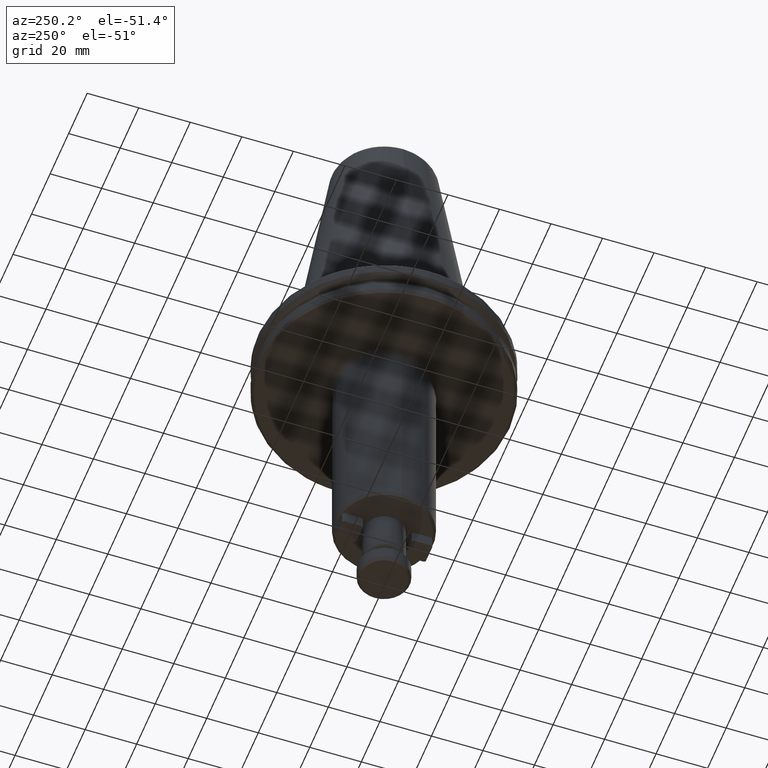
[diagram: clean part render]
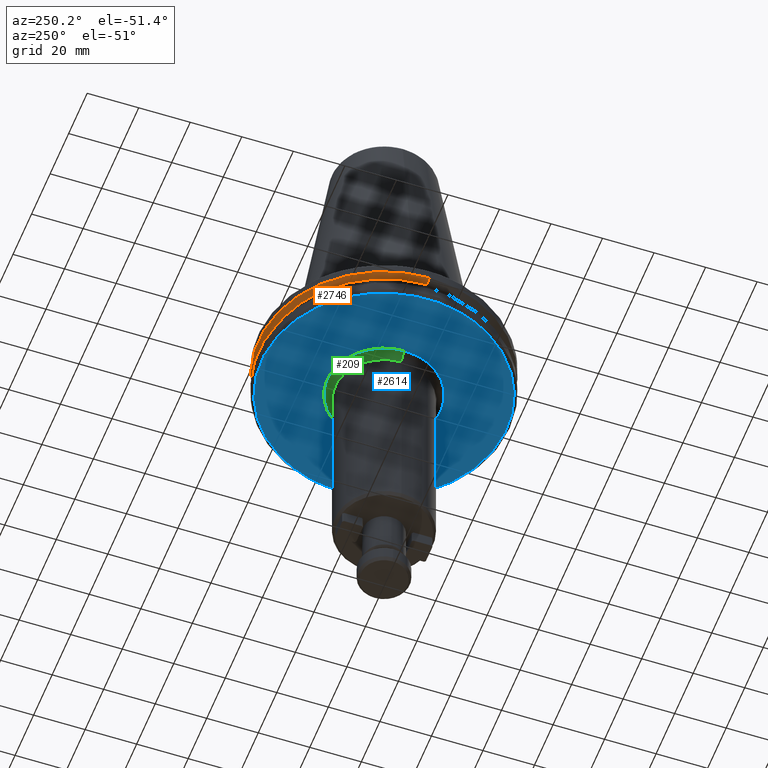
[diagram: same view with three faces highlighted in distinct colors, each labeled with its STEP entity id]
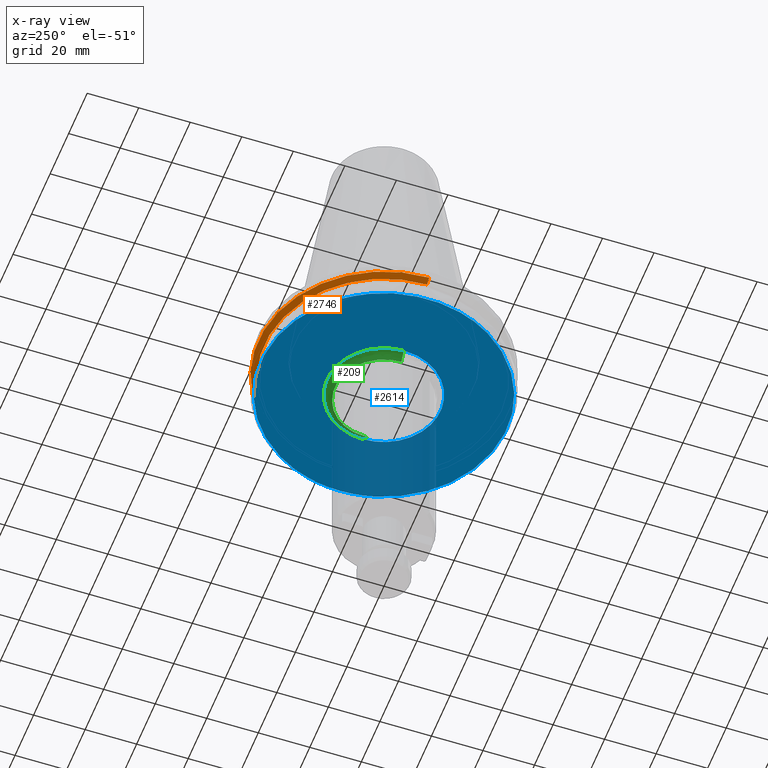
[diagram: x-ray of the same camera — body ghosted, the three highlighted faces saturated]
A machine part, auxiliary view with three faces highlighted in distinct colors.
The next image is the same camera in x-ray (body ghosted, the three faces saturated) — at least one of them is partly hidden behind the body in this view.
Their STEP definitions:

[orange] entity #2746 — the highlighted conical surface has half-angle 60 deg.
#76 = FACE_OUTER_BOUND ( 'NONE', #1607, .T. ) ;
#136 = ORIENTED_EDGE ( 'NONE', *, *, #2966, .F. ) ;
#144 = LINE ( 'NONE', #3633, #1040 ) ;
#149 = AXIS2_PLACEMENT_3D ( 'NONE', #3925, #3938, #1696 ) ;
#197 = CARTESIAN_POINT ( 'NONE',  ( 46.41589653438085600, 0.0000000000000000000, -9.200000000000009900 ) ) ;
#525 = VECTOR ( 'NONE', #2649, 1000.000000000000000 ) ;
#714 = EDGE_CURVE ( 'NONE', #936, #3614, #3057, .T. ) ;
#845 = ORIENTED_EDGE ( 'NONE', *, *, #4125, .F. ) ;
#936 = VERTEX_POINT ( 'NONE', #1743 ) ;
#1040 = VECTOR ( 'NONE', #1351, 1000.000000000000000 ) ;
#1351 = DIRECTION ( 'NONE',  ( 0.8660254037844377100, 0.0000000000000000000, 0.5000000000000016700 ) ) ;
#1419 = AXIS2_PLACEMENT_3D ( 'NONE', #1560, #3816, #1893 ) ;
#1515 = DIRECTION ( 'NONE',  ( 0.0000000000000000000, 0.0000000000000000000, 1.000000000000000000 ) ) ;
#1560 = CARTESIAN_POINT ( 'NONE',  ( 0.0000000000000000000, 0.0000000000000000000, -9.200000000000009900 ) ) ;
#1607 = EDGE_LOOP ( 'NONE', ( #2263, #3952, #136, #845 ) ) ;
#1652 = CONICAL_SURFACE ( 'NONE', #149, 48.75000000000000700, 1.047197551196595900 ) ;
#1696 = DIRECTION ( 'NONE',  ( 1.000000000000000000, 0.0000000000000000000, 0.0000000000000000000 ) ) ;
#1743 = CARTESIAN_POINT ( 'NONE',  ( -46.41589653438085600, 5.827230528940885300E-015, -9.200000000000009900 ) ) ;
#1893 = DIRECTION ( 'NONE',  ( 1.000000000000000000, 0.0000000000000000000, 0.0000000000000000000 ) ) ;
#2206 = CARTESIAN_POINT ( 'NONE',  ( -48.75000000000000700, 5.970153145843347900E-015, -7.852404735808348400 ) ) ;
#2263 = ORIENTED_EDGE ( 'NONE', *, *, #3042, .T. ) ;
#2359 = CARTESIAN_POINT ( 'NONE',  ( -48.75000000000000000, 5.970153145843347100E-015, -7.852404735808352000 ) ) ;
#2528 = CARTESIAN_POINT ( 'NONE',  ( 48.75000000000000000, 0.0000000000000000000, -7.852404735808352000 ) ) ;
#2649 = DIRECTION ( 'NONE',  ( -0.8660254037844377100, 1.060575238724905800E-016, 0.5000000000000016700 ) ) ;
#2746 = ADVANCED_FACE ( 'NONE', ( #76 ), #1652, .T. ) ;
#2966 = EDGE_CURVE ( 'NONE', #3003, #3614, #4142, .T. ) ;
#3003 = VERTEX_POINT ( 'NONE', #2528 ) ;
#3042 = EDGE_CURVE ( 'NONE', #3942, #936, #3259, .T. ) ;
#3057 = LINE ( 'NONE', #2206, #525 ) ;
#3259 = CIRCLE ( 'NONE', #1419, 46.41589653438085600 ) ;
#3464 = CARTESIAN_POINT ( 'NONE',  ( 0.0000000000000000000, 0.0000000000000000000, -7.852404735808352000 ) ) ;
#3614 = VERTEX_POINT ( 'NONE', #2359 ) ;
#3633 = CARTESIAN_POINT ( 'NONE',  ( 48.75000000000000700, 0.0000000000000000000, -7.852404735808348400 ) ) ;
#3686 = AXIS2_PLACEMENT_3D ( 'NONE', #3464, #1515, #3782 ) ;
#3782 = DIRECTION ( 'NONE',  ( 1.000000000000000000, 0.0000000000000000000, 0.0000000000000000000 ) ) ;
#3816 = DIRECTION ( 'NONE',  ( 0.0000000000000000000, 0.0000000000000000000, 1.000000000000000000 ) ) ;
#3925 = CARTESIAN_POINT ( 'NONE',  ( 0.0000000000000000000, 0.0000000000000000000, -7.852404735808348400 ) ) ;
#3938 = DIRECTION ( 'NONE',  ( 0.0000000000000000000, 0.0000000000000000000, 1.000000000000000000 ) ) ;
#3942 = VERTEX_POINT ( 'NONE', #197 ) ;
#3952 = ORIENTED_EDGE ( 'NONE', *, *, #714, .T. ) ;
#4125 = EDGE_CURVE ( 'NONE', #3942, #3003, #144, .T. ) ;
#4142 = CIRCLE ( 'NONE', #3686, 48.75000000000000000 ) ;

[blue] entity #2614 — the highlighted planar face has unit normal (0, 0, -1).
#11 = CARTESIAN_POINT ( 'NONE',  ( 19.06919911911503700, -43.63110076014636000, -19.10000000000000500 ) ) ;
#15 = ORIENTED_EDGE ( 'NONE', *, *, #3251, .T. ) ;
#41 = CARTESIAN_POINT ( 'NONE',  ( 0.0000000000000000000, 0.0000000000000000000, -19.09999999474892700 ) ) ;
#42 = CARTESIAN_POINT ( 'NONE',  ( -45.81650991385436100, -12.85002475276211300, -19.09999999474892700 ) ) ;
#49 = CARTESIAN_POINT ( 'NONE',  ( -43.27416862306105800, -19.78925870223156000, -19.10000000000000900 ) ) ;
#59 = CARTESIAN_POINT ( 'NONE',  ( -25.39850626193174300, 40.23911708929993100, -19.10000000000000100 ) ) ;
#60 = CARTESIAN_POINT ( 'NONE',  ( -40.27606908762341900, -25.37207012674300100, -19.10000000000000900 ) ) ;
#75 = CARTESIAN_POINT ( 'NONE',  ( -39.24372344673313500, -26.91181163147783200, -19.10000000000000100 ) ) ;
#88 = CARTESIAN_POINT ( 'NONE',  ( -41.27447217701355000, -23.73945825336500100, -19.10000000000000500 ) ) ;
#103 = CARTESIAN_POINT ( 'NONE',  ( -29.80952097295647000, -37.11384944854526700, -19.10000000000000500 ) ) ;
#113 = CARTESIAN_POINT ( 'NONE',  ( -39.52121115035011900, -26.50183329894598200, -19.10000000000000900 ) ) ;
#117 = ORIENTED_EDGE ( 'NONE', *, *, #1377, .F. ) ;
#128 = CARTESIAN_POINT ( 'NONE',  ( -14.90863721726842800, 45.18917973414403400, -19.10000000000000500 ) ) ;
#137 = CARTESIAN_POINT ( 'NONE',  ( 2.547980808395235600, 47.51621399213986100, -19.10000000000000100 ) ) ;
#138 = CARTESIAN_POINT ( 'NONE',  ( -39.47414305756478800, -26.57189768201729400, -19.10000000000000900 ) ) ;
#154 = DIRECTION ( 'NONE',  ( 1.000000000000000000, 0.0000000000000000000, 0.0000000000000000000 ) ) ;
#156 = CARTESIAN_POINT ( 'NONE',  ( 15.31832594408059100, 45.06140698263472900, -19.10000000000001200 ) ) ;
#157 = DIRECTION ( 'NONE',  ( -0.0000000000000000000, -0.0000000000000000000, 1.000000000000000000 ) ) ;
#158 = CARTESIAN_POINT ( 'NONE',  ( 0.0000000000000000000, 0.0000000000000000000, -19.09999999474892700 ) ) ;
#170 = CARTESIAN_POINT ( 'NONE',  ( 24.71160396700230100, 40.66470845362184100, -19.10000000000000100 ) ) ;
#171 = CARTESIAN_POINT ( 'NONE',  ( -42.32153804858890600, -21.76885322459245500, -19.10000000000000900 ) ) ;
#175 = CARTESIAN_POINT ( 'NONE',  ( -26.62270247519749200, -39.52978200592753700, -19.09999999999999400 ) ) ;
#181 = AXIS2_PLACEMENT_3D ( 'NONE', #2857, #886, #3181 ) ;
#183 = CARTESIAN_POINT ( 'NONE',  ( -20.67791877936986100, -7.515399659677927800, -19.10000000000000500 ) ) ;
#184 = CARTESIAN_POINT ( 'NONE',  ( 37.49764701077705800, 29.29604387573100900, -19.10000000000000500 ) ) ;
#185 = CARTESIAN_POINT ( 'NONE',  ( -39.38217416850997700, -26.70802196479451900, -19.10000000000000500 ) ) ;
#190 = CARTESIAN_POINT ( 'NONE',  ( -24.37778840664681800, -40.95242410592162200, -19.10000000000000500 ) ) ;
#199 = CARTESIAN_POINT ( 'NONE',  ( -16.63001222808562200, -14.48263358433419300, -19.10000000000000500 ) ) ;
#200 = CARTESIAN_POINT ( 'NONE',  ( 43.60702238820626100, 19.04732045925824500, -19.10000000000000500 ) ) ;
#201 = CARTESIAN_POINT ( 'NONE',  ( 14.17717719788480400, 16.85304434527245800, -19.10000000000000500 ) ) ;
#214 = CARTESIAN_POINT ( 'NONE',  ( -8.270596387122957100, -20.38625831590732000, -19.10000000000000500 ) ) ;
#216 = CARTESIAN_POINT ( 'NONE',  ( -33.04293178105576300, -34.25236535246320100, -19.10000000000000500 ) ) ;
#222 = CARTESIAN_POINT ( 'NONE',  ( -31.34702148197053600, -35.84352815055592600, -19.10000000000000500 ) ) ;
#233 = CARTESIAN_POINT ( 'NONE',  ( -1.345275040422472500, -21.99996757059236800, -19.10000000000000900 ) ) ;
#235 = CARTESIAN_POINT ( 'NONE',  ( 39.87405336317789300, -25.96868526588640000, -19.10000000000000100 ) ) ;
#239 = CARTESIAN_POINT ( 'NONE',  ( 40.76988109013157000, -24.55223597831507500, -19.10000000000000900 ) ) ;
#246 = CARTESIAN_POINT ( 'NONE',  ( 7.515399659682968200, -20.67791877936862100, -19.10000000000000100 ) ) ;
#249 = CARTESIAN_POINT ( 'NONE',  ( 40.17757738671358000, -25.49926469668890400, -19.10000000000000500 ) ) ;
#256 = CARTESIAN_POINT ( 'NONE',  ( -12.63026754929554600, -45.88542074854634500, -19.10000000000000500 ) ) ;
#267 = CARTESIAN_POINT ( 'NONE',  ( 14.48263358431708000, -16.63001222810027400, -19.10000000000000500 ) ) ;
#270 = CARTESIAN_POINT ( 'NONE',  ( -7.064305541282759100, -47.05712494446966300, -19.10000000000000900 ) ) ;
#274 = CARTESIAN_POINT ( 'NONE',  ( -3.066716835733801300, -47.51334310158583900, -19.10000000000000900 ) ) ;
#283 = CARTESIAN_POINT ( 'NONE',  ( 20.38625831590878700, -8.270596387119361700, -19.10000000000000500 ) ) ;
#284 = CARTESIAN_POINT ( 'NONE',  ( 24.05664872149412000, -41.06504018283744300, -19.10000000000000500 ) ) ;
#285 = CARTESIAN_POINT ( 'NONE',  ( 20.88595905968196600, 6.928576152036943500, -19.10000000000000500 ) ) ;
#289 = CARTESIAN_POINT ( 'NONE',  ( 23.04197630937905200, -41.63572875460497600, -19.10000000000000900 ) ) ;
#291 = CARTESIAN_POINT ( 'NONE',  ( 21.68460623744281100, 3.713555144554614900, -19.10000000000000900 ) ) ;
#298 = CARTESIAN_POINT ( 'NONE',  ( 21.99999999999999600, -1.345805848813785000, -19.10000000000000100 ) ) ;
#300 = CARTESIAN_POINT ( 'NONE',  ( -10.47107321257776200, -46.44890181901310200, -19.10000000000000500 ) ) ;
#304 = CARTESIAN_POINT ( 'NONE',  ( -13.70206127222429000, -45.57086505245657500, -19.10000000000000100 ) ) ;
#306 = ORIENTED_EDGE ( 'NONE', *, *, #3627, .F. ) ;
#323 = CARTESIAN_POINT ( 'NONE',  ( 21.64787207006384800, 3.920464838256516600, -19.10000000000000100 ) ) ;
#328 = CARTESIAN_POINT ( 'NONE',  ( 0.0000000000000000000, 1.392610934382537900E-015, -19.10000000000000500 ) ) ;
#331 = CARTESIAN_POINT ( 'NONE',  ( 39.74239188769973900, -26.16898826911619100, -19.10000000000001200 ) ) ;
#336 = CARTESIAN_POINT ( 'NONE',  ( 22.52972475072374100, -41.91334347041178200, -19.10000000000000100 ) ) ;
#350 = CARTESIAN_POINT ( 'NONE',  ( 22.08702858398671200, -42.14779738270512200, -19.10000000000000500 ) ) ;
#364 = CARTESIAN_POINT ( 'NONE',  ( 20.84887959193406800, -42.79392924822951000, -19.10000000000000900 ) ) ;
#370 = VERTEX_POINT ( 'NONE', #3671 ) ;
#376 = CARTESIAN_POINT ( 'NONE',  ( 7.882317655028997700, -46.92741024692442400, -19.10000000000000100 ) ) ;
#382 = CARTESIAN_POINT ( 'NONE',  ( 38.83538641208784300, -27.52832894059743300, -19.10000000000000500 ) ) ;
#386 = CARTESIAN_POINT ( 'NONE',  ( -21.64787207006385500, -3.920464838257106300, -19.10000000000000100 ) ) ;
#390 = DIRECTION ( 'NONE',  ( 1.000000000000000000, 0.0000000000000000000, 0.0000000000000000000 ) ) ;
#395 = CARTESIAN_POINT ( 'NONE',  ( 39.65426651491299700, -26.30232866222224400, -19.09999999999999800 ) ) ;
#407 = CARTESIAN_POINT ( 'NONE',  ( -23.25549417440079800, 41.53467180138673600, -19.10000000000000500 ) ) ;
#409 = CARTESIAN_POINT ( 'NONE',  ( 37.67621538465287800, -29.11717796348957100, -19.10000000000000500 ) ) ;
#421 = CARTESIAN_POINT ( 'NONE',  ( 41.89551112235373200, -22.62542822165210400, -19.10000000000000500 ) ) ;
#425 = EDGE_LOOP ( 'NONE', ( #1737, #2772 ) ) ;
#434 = CARTESIAN_POINT ( 'NONE',  ( -43.25687800644198700, -19.82702823906568700, -19.10000000000000100 ) ) ;
#446 = CARTESIAN_POINT ( 'NONE',  ( -43.17333286363982100, -20.00853958726899200, -19.10000000000000500 ) ) ;
#455 = CARTESIAN_POINT ( 'NONE',  ( 26.04667072494200000, -39.86182647868684400, -19.10000000000000500 ) ) ;
#470 = CARTESIAN_POINT ( 'NONE',  ( -10.82718688243038800, 46.37940535234366000, -19.10000000000000500 ) ) ;
#471 = CARTESIAN_POINT ( 'NONE',  ( -7.254117645265835400, -47.02814260653002500, -19.10000000000000900 ) ) ;
#485 = CARTESIAN_POINT ( 'NONE',  ( 2.921919774953071900, 47.49467552483471900, -19.09999999999999800 ) ) ;
#486 = CARTESIAN_POINT ( 'NONE',  ( 34.73067266395411000, -32.52774543433425700, -19.10000000000000100 ) ) ;
#500 = CARTESIAN_POINT ( 'NONE',  ( 18.21854896511472800, 43.96310894627836800, -19.10000000000000900 ) ) ;
#501 = CARTESIAN_POINT ( 'NONE',  ( -34.27205937641023300, -33.01125269224346700, -19.10000000000000100 ) ) ;
#504 = B_SPLINE_CURVE_WITH_KNOTS ( 'NONE', 3,
 ( #3027, #724, #3350, #1393, #3673, #1728, #3953, #2060, #59, #2389, #407, #2724, #738, #3040, #1070, #3362, #1405, #3689, #1794, #4008, #2128, #128, #2452, #470, #2786, #811, #3105, #1133, #3429, #1475, #3744, #1804, #4023, #2146, #137, #2468, #485, #2799, #821, #3116, #1150, #3442, #1486, #3754, #1816, #4031, #2157, #156, #2481, #500, #2812, #834, #3130, #1162, #3452, #1497, #3768, #1832, #4039, #2169, #170, #2496, #514, #2828, #847, #3141, #1174, #3462, #1512, #3778, #1846, #4049, #2181, #184, #2513, #528, #2836, #865, #3154, #1189, #3476, #1526, #3790, #1862, #4066, #2196, #200, #2526, #541, #2848, #876, #3172, #1201, #3488 ),
 .UNSPECIFIED., .F., .F.,
 ( 4, 1, 1, 1, 1, 2, 2, 1, 1, 1, 2, 2, 1, 1, 2, 2, 2, 1, 1, 2, 2, 1, 1, 1, 2, 2, 1, 1, 1, 1, 2, 2, 2, 1, 1, 1, 1, 2, 2, 1, 1, 1, 2, 2, 1, 1, 2, 2, 2, 1, 1, 2, 2, 1, 1, 1, 2, 2, 1, 1, 1, 1, 2, 2, 4 ),
 ( 0.0000000000000000000, 0.03124999999999664900, 0.04687499999999486500, 0.05468749999999397000, 0.05859374999999363000, 0.06054687499999357500, 0.06249999999999351900, 0.09374999999999429600, 0.1093749999999947100, 0.1171874999999949100, 0.1210937499999949100, 0.1249999999999949200, 0.1562499999999948100, 0.1718749999999947500, 0.1796874999999947300, 0.1874999999999946700, 0.2499999999999945600, 0.2812499999999945000, 0.2968749999999944500, 0.3046874999999944500, 0.3124999999999944500, 0.3437499999999945000, 0.3593749999999945600, 0.3671874999999945600, 0.3710937499999945600, 0.3749999999999945600, 0.4062499999999947300, 0.4218749999999947800, 0.4296874999999947800, 0.4335937499999947300, 0.4355468749999947800, 0.4374999999999947800, 0.4999999999999950000, 0.5312499999999952300, 0.5468749999999952300, 0.5546874999999952300, 0.5585937499999952300, 0.5605468749999953400, 0.5624999999999953400, 0.5937499999999945600, 0.6093749999999941200, 0.6171874999999938900, 0.6210937499999937800, 0.6249999999999936700, 0.6562499999999931200, 0.6718749999999927800, 0.6796874999999926700, 0.6874999999999926700, 0.7499999999999925600, 0.7812499999999927800, 0.7968749999999927800, 0.8046874999999927800, 0.8124999999999926700, 0.8437499999999924500, 0.8593749999999923400, 0.8671874999999922300, 0.8710937499999923400, 0.8749999999999923400, 0.9062499999999934500, 0.9218749999999938900, 0.9296874999999942300, 0.9335937499999944500, 0.9355468749999945600, 0.9374999999999946700, 1.000000000000000000 ),
 .UNSPECIFIED. ) ;
#507 = CARTESIAN_POINT ( 'NONE',  ( -34.55932176383649300, -32.70974151198348100, -19.10000000000000500 ) ) ;
#514 = CARTESIAN_POINT ( 'NONE',  ( 25.76667434766581300, 40.01666842955532400, -19.10000000000000500 ) ) ;
#515 = CARTESIAN_POINT ( 'NONE',  ( -33.86642685690727500, -33.42950363247387500, -19.10000000000000500 ) ) ;
#519 = CARTESIAN_POINT ( 'NONE',  ( -38.91719004522487800, -27.38454355136135400, -19.10000000000000900 ) ) ;
#527 = CARTESIAN_POINT ( 'NONE',  ( -20.52036344144876200, -7.932009045223953300, -19.09999999999999800 ) ) ;
#528 = CARTESIAN_POINT ( 'NONE',  ( 37.95643437415584000, 28.69908590947580500, -19.10000000000000500 ) ) ;
#529 = CARTESIAN_POINT ( 'NONE',  ( -21.94033403670224300, -42.22434829679992400, -19.10000000000000500 ) ) ;
#531 = CARTESIAN_POINT ( 'NONE',  ( -35.57383602575539800, -31.63065524385431400, -19.10000000000000100 ) ) ;
#540 = CARTESIAN_POINT ( 'NONE',  ( -14.17717719791629700, -16.85304434524095600, -19.10000000000000500 ) ) ;
#541 = CARTESIAN_POINT ( 'NONE',  ( 43.84707740126011500, 18.48525077571082100, -19.10000000000000500 ) ) ;
#542 = CARTESIAN_POINT ( 'NONE',  ( -20.98967348492718400, -42.70707776895816500, -19.10000000000000500 ) ) ;
#546 = CARTESIAN_POINT ( 'NONE',  ( -45.81650991385429000, 12.85002475276233900, -19.09999999474892700 ) ) ;
#554 = CARTESIAN_POINT ( 'NONE',  ( -8.139535032519747300, -20.43893125800334300, -19.10000000000000500 ) ) ;
#558 = CARTESIAN_POINT ( 'NONE',  ( 18.61474831812159200, 11.72606424544354000, -19.10000000000000900 ) ) ;
#568 = CARTESIAN_POINT ( 'NONE',  ( 1.677514054503062000, -21.95411813887725900, -19.10000000000000500 ) ) ;
#583 = CARTESIAN_POINT ( 'NONE',  ( 7.932009045225540500, -20.52036344144837400, -19.10000000000000500 ) ) ;
#597 = CARTESIAN_POINT ( 'NONE',  ( 16.85304434525591300, -14.17717719790348600, -19.10000000000000500 ) ) ;
#599 = CARTESIAN_POINT ( 'NONE',  ( 21.82018490565352300, 2.842845475231365400, -19.10000000000000500 ) ) ;
#602 = CARTESIAN_POINT ( 'NONE',  ( 11.71142353891909200, -46.15177667591264300, -19.10000000000000500 ) ) ;
#613 = CARTESIAN_POINT ( 'NONE',  ( 20.43893125800291700, -8.139535032520859300, -19.10000000000000900 ) ) ;
#614 = CARTESIAN_POINT ( 'NONE',  ( 7.487954410176240700, -46.99147931232112500, -19.10000000000000500 ) ) ;
#618 = CARTESIAN_POINT ( 'NONE',  ( 7.606337559600864200, -46.97256599227938500, -19.10000000000000500 ) ) ;
#628 = CARTESIAN_POINT ( 'NONE',  ( -14.69055632917383000, -45.25992943446074400, -19.10000000000000100 ) ) ;
#631 = CARTESIAN_POINT ( 'NONE',  ( 32.84777691328537200, -34.53116215255219100, -19.10000000000000100 ) ) ;
#651 = CARTESIAN_POINT ( 'NONE',  ( 30.87175777942523800, -36.30849107487021900, -19.10000000000000100 ) ) ;
#662 = CARTESIAN_POINT ( 'NONE',  ( 9.531275137177059900, -46.62778514758635100, -19.10000000000000500 ) ) ;
#668 = CARTESIAN_POINT ( 'NONE',  ( -7.178197001860739100, -47.03979101429536800, -19.10000000000000900 ) ) ;
#678 = CARTESIAN_POINT ( 'NONE',  ( 8.433288832968020900, -46.83300009518481500, -19.10000000000000500 ) ) ;
#682 = CARTESIAN_POINT ( 'NONE',  ( 14.92480319435984300, -45.18322660194292000, -19.10000000000000500 ) ) ;
#694 = CARTESIAN_POINT ( 'NONE',  ( -14.61660763804840700, -45.28386166225934100, -19.10000000000000900 ) ) ;
#699 = CARTESIAN_POINT ( 'NONE',  ( 13.55299495753909000, -45.63134899766063100, -19.10000000000000900 ) ) ;
#709 = CARTESIAN_POINT ( 'NONE',  ( 15.08070599188592800, -45.13143456946085100, -19.10000000000000900 ) ) ;
#715 = CARTESIAN_POINT ( 'NONE',  ( 14.84463130699052900, -45.20962530651281200, -19.10000000000000900 ) ) ;
#721 = CARTESIAN_POINT ( 'NONE',  ( 47.58440623598965400, 0.0000000000000000000, -19.09999999474892700 ) ) ;
#724 = CARTESIAN_POINT ( 'NONE',  ( -29.25803840789287200, 37.53861819214704800, -19.09999999999999800 ) ) ;
#727 = CARTESIAN_POINT ( 'NONE',  ( 15.85766042695990500, -44.86641853677324600, -19.10000000000000500 ) ) ;
#738 = CARTESIAN_POINT ( 'NONE',  ( -20.97772230054858200, 42.71191916152597700, -19.10000000000000100 ) ) ;
#741 = CARTESIAN_POINT ( 'NONE',  ( 16.93742074003273900, -44.47652521782405400, -19.10000000000000100 ) ) ;
#756 = CARTESIAN_POINT ( 'NONE',  ( 16.63001222812161800, 14.48263358429818500, -19.10000000000000500 ) ) ;
#761 = CARTESIAN_POINT ( 'NONE',  ( 22.00000000000000000, 2.694222958124176800E-015, -19.10000000000000500 ) ) ;
#770 = CARTESIAN_POINT ( 'NONE',  ( 15.31431248954055300, -45.05316046877541000, -19.10000000000000100 ) ) ;
#773 = CARTESIAN_POINT ( 'NONE',  ( 20.52036344144912400, 7.932009045223265000, -19.10000000000000100 ) ) ;
#785 = CARTESIAN_POINT ( 'NONE',  ( 21.65908062398337800, 3.858408933056433700, -19.10000000000000500 ) ) ;
#811 = CARTESIAN_POINT ( 'NONE',  ( -6.393095184566051100, 47.17156811542699300, -19.10000000000000900 ) ) ;
#821 = CARTESIAN_POINT ( 'NONE',  ( 5.478699833393303500, 47.28562886859818800, -19.10000000000000100 ) ) ;
#822 = CARTESIAN_POINT ( 'NONE',  ( -14.46442323065742200, -45.33270475704076600, -19.10000000000000500 ) ) ;
#827 = CARTESIAN_POINT ( 'NONE',  ( 20.56844768583306400, 7.807259079637626400, -19.10000000000000100 ) ) ;
#834 = CARTESIAN_POINT ( 'NONE',  ( 19.36869561264892800, 43.46430390230612800, -19.10000000000000100 ) ) ;
#835 = CARTESIAN_POINT ( 'NONE',  ( 34.89789368789844600, -32.34827798778996300, -19.10000000000000100 ) ) ;
#847 = CARTESIAN_POINT ( 'NONE',  ( 28.41294149275874800, 38.17601633497948700, -19.09999999999999800 ) ) ;
#848 = CARTESIAN_POINT ( 'NONE',  ( 15.01951766509526300, 16.09320698700697600, -19.10000000000000500 ) ) ;
#854 = CARTESIAN_POINT ( 'NONE',  ( -14.23600727233111000, -45.40538341419763000, -19.10000000000000500 ) ) ;
#864 = CARTESIAN_POINT ( 'NONE',  ( -20.47244127071620300, -8.054890344844070100, -19.10000000000000100 ) ) ;
#865 = CARTESIAN_POINT ( 'NONE',  ( 39.55409234850913700, 26.48536274293576300, -19.10000000000000100 ) ) ;
#867 = CARTESIAN_POINT ( 'NONE',  ( -21.72237678637516800, -42.33689194281741700, -19.10000000000000500 ) ) ;
#875 = CARTESIAN_POINT ( 'NONE',  ( -12.58948349908238900, -18.04357110901347700, -19.10000000000000100 ) ) ;
#876 = CARTESIAN_POINT ( 'NONE',  ( 43.91854959793744200, 18.31478907998181800, -19.10000000000000100 ) ) ;
#877 = CARTESIAN_POINT ( 'NONE',  ( 19.09681535523005600, 10.93436047074153300, -19.10000000000000500 ) ) ;
#880 = CARTESIAN_POINT ( 'NONE',  ( -44.93810529642089300, 15.98161967225063900, -19.10000000000000100 ) ) ;
#881 = CARTESIAN_POINT ( 'NONE',  ( -38.25019637275914900, -28.31889818161814500, -19.10000000000000500 ) ) ;
#886 = DIRECTION ( 'NONE',  ( -0.0000000000000000000, -0.0000000000000000000, 1.000000000000000000 ) ) ;
#889 = CARTESIAN_POINT ( 'NONE',  ( -6.425581732760171900, -21.06203278896098000, -19.10000000000000900 ) ) ;
#891 = CARTESIAN_POINT ( 'NONE',  ( -6.798485331641742800, -47.09660001122696800, -19.10000000000000900 ) ) ;
#902 = CARTESIAN_POINT ( 'NONE',  ( 3.423553767312095300, -21.73315916266629000, -19.10000000000000500 ) ) ;
#918 = CARTESIAN_POINT ( 'NONE',  ( 8.054890344843361300, -20.47244127071656500, -19.10000000000000500 ) ) ;
#920 = CARTESIAN_POINT ( 'NONE',  ( 18.51510597627777000, 11.88274179770358300, -19.10000000000000500 ) ) ;
#929 = CARTESIAN_POINT ( 'NONE',  ( 18.04357110902002500, -12.58948349907677600, -19.10000000000000900 ) ) ;
#944 = CARTESIAN_POINT ( 'NONE',  ( 21.06203278897300600, -6.425581732729024300, -19.10000000000000500 ) ) ;
#1053 = ORIENTED_EDGE ( 'NONE', *, *, #3013, .T. ) ;
#1070 = CARTESIAN_POINT ( 'NONE',  ( -20.42700269620342000, 42.97696412136785700, -19.09999999999999800 ) ) ;
#1077 = CARTESIAN_POINT ( 'NONE',  ( 21.95408976314558900, 1.677667413967471000, -19.10000000000000900 ) ) ;
#1099 = CARTESIAN_POINT ( 'NONE',  ( -7.290541769874658400, -47.02251111249497500, -19.10000000000000500 ) ) ;
#1100 = CARTESIAN_POINT ( 'NONE',  ( 22.00000000000000700, 0.6727251541908998400, -19.10000000000000900 ) ) ;
#1114 = VERTEX_POINT ( 'NONE', #761 ) ;
#1122 = CARTESIAN_POINT ( 'NONE',  ( 17.58303452885754600, 13.30955040853501400, -19.10000000000000100 ) ) ;
#1133 = CARTESIAN_POINT ( 'NONE',  ( -3.905819226031873400, 47.42442718986811200, -19.10000000000000500 ) ) ;
#1144 = CARTESIAN_POINT ( 'NONE',  ( -21.82018490565353000, -2.842845475237781200, -19.10000000000000500 ) ) ;
#1150 = CARTESIAN_POINT ( 'NONE',  ( 8.014402807646559900, 46.90567306712805600, -19.10000000000000500 ) ) ;
#1162 = CARTESIAN_POINT ( 'NONE',  ( 19.64105775858945100, 43.34165811582305100, -19.10000000000000900 ) ) ;
#1165 = CARTESIAN_POINT ( 'NONE',  ( -45.81650991385429000, 12.85002475276233900, -19.09999999474892700 ) ) ;
#1174 = CARTESIAN_POINT ( 'NONE',  ( 29.39637043276513900, 37.41901030422590700, -19.10000000000000900 ) ) ;
#1188 = CARTESIAN_POINT ( 'NONE',  ( -19.72140032570629800, -9.800061415354756300, -19.10000000000000100 ) ) ;
#1189 = CARTESIAN_POINT ( 'NONE',  ( 40.92895922265621100, 24.27337234609990800, -19.10000000000000500 ) ) ;
#1200 = CARTESIAN_POINT ( 'NONE',  ( -12.19716485784353000, -18.30951292798233300, -19.10000000000000500 ) ) ;
#1201 = CARTESIAN_POINT ( 'NONE',  ( 45.30006797984477600, 14.69104886070644700, -19.10000000000000500 ) ) ;
#1203 = CARTESIAN_POINT ( 'NONE',  ( -43.75094089817592600, 18.99202807369529800, -19.10000000000000500 ) ) ;
#1212 = CARTESIAN_POINT ( 'NONE',  ( -4.615105481666332400, -21.51181872264644600, -19.10000000000000500 ) ) ;
#1214 = CARTESIAN_POINT ( 'NONE',  ( 10.45736319288341500, 19.38087801474524600, -19.10000000000000900 ) ) ;
#1217 = CARTESIAN_POINT ( 'NONE',  ( -34.44459152367806400, -32.83054084352279000, -19.10000000000000100 ) ) ;
#1223 = CARTESIAN_POINT ( 'NONE',  ( 3.858390362183781200, -21.65908406010714100, -19.10000000000000100 ) ) ;
#1225 = CARTESIAN_POINT ( 'NONE',  ( 6.425581732685285100, 21.06203278898110300, -19.10000000000000500 ) ) ;
#1230 = CARTESIAN_POINT ( 'NONE',  ( 7.434860855781690400, 20.71792446930702900, -19.10000000000000500 ) ) ;
#1240 = B_SPLINE_CURVE_WITH_KNOTS ( 'NONE', 3,
 ( #3629, #1100, #1077, #599, #1694, #291, #785, #323, #1271, #3821, #1925, #2455, #285, #2899, #827, #773, #1979, #3781, #3435, #1942, #877, #3456, #558, #920, #1487, #1122, #756, #848, #201, #3590, #3566, #3550, #2486, #2469, #2453, #1214, #1274, #2691, #2518, #2514, #2503, #1322, #1230, #1225, #3380, #3364, #3338, #3819, #2017, #1435, #3745, #1592, #3221, #3239, #3230, #3227, #2482, #2361, #3265, #3412, #2645, #1390, #3529, #3518, #3507, #2442, #2431, #2420, #1723, #3674, #2590, #2404, #2379, #2353, #3895, #2581, #2750, #3203, #3197, #3188, #1940, #1923, #1918, #3613, #1503, #3968, #1970, #1964, #1957, #3058, #2101, #1865, #3502, #3495, #3489, #2327, #2319, #2309, #3769, #2910, #3348, #2348, #2339, #2334, #3335, #4055 ),
 .UNSPECIFIED., .F., .F.,
 ( 4, 1, 1, 1, 1, 1, 2, 2, 1, 1, 1, 1, 2, 2, 1, 1, 1, 2, 2, 2, 1, 1, 1, 2, 2, 1, 1, 1, 1, 2, 2, 1, 1, 1, 1, 1, 2, 2, 2, 1, 1, 1, 1, 1, 2, 2, 1, 1, 1, 1, 2, 2, 1, 1, 1, 2, 2, 2, 1, 1, 1, 2, 2, 1, 1, 1, 1, 2, 2, 1, 1, 1, 1, 1, 2, 2, 4 ),
 ( 0.0000000000000000000, 0.03124999999999868200, 0.04687499999999802200, 0.05468749999999769600, 0.05859374999999752300, 0.06054687499999744000, 0.06152343749999741900, 0.06249999999999739100, 0.09374999999999754400, 0.1093749999999976300, 0.1171874999999977200, 0.1210937499999977500, 0.1230468749999977500, 0.1249999999999977500, 0.1562499999999973600, 0.1718749999999971700, 0.1796874999999970600, 0.1835937499999970000, 0.1874999999999969500, 0.2499999999999963400, 0.2812499999999960000, 0.2968749999999958900, 0.3046874999999958400, 0.3085937499999958400, 0.3124999999999958400, 0.3437499999999957800, 0.3593749999999957300, 0.3671874999999956700, 0.3710937499999956100, 0.3730468749999955000, 0.3749999999999954500, 0.4062499999999952800, 0.4218749999999952300, 0.4296874999999951700, 0.4335937499999951200, 0.4355468749999951200, 0.4365234374999950600, 0.4374999999999950000, 0.4999999999999952300, 0.5312499999999953400, 0.5468749999999954500, 0.5546874999999955600, 0.5585937499999956700, 0.5605468749999956700, 0.5615234374999957800, 0.5624999999999957800, 0.5937499999999958900, 0.6093749999999958900, 0.6171874999999958900, 0.6210937499999960000, 0.6230468749999960000, 0.6249999999999960000, 0.6562499999999961100, 0.6718749999999961100, 0.6796874999999960000, 0.6835937499999958900, 0.6874999999999958900, 0.7499999999999948900, 0.7812499999999943400, 0.7968749999999941200, 0.8046874999999940000, 0.8085937499999940000, 0.8124999999999938900, 0.8437499999999938900, 0.8593749999999938900, 0.8671874999999938900, 0.8710937499999940000, 0.8730468749999940000, 0.8749999999999940000, 0.9062499999999954500, 0.9218749999999961100, 0.9296874999999964500, 0.9335937499999965600, 0.9355468749999965600, 0.9365234374999966700, 0.9374999999999967800, 1.000000000000000000 ),
 .UNSPECIFIED. ) ;
#1243 = CARTESIAN_POINT ( 'NONE',  ( 9.800061415374729600, -19.72140032569657500, -19.10000000000000500 ) ) ;
#1256 = CARTESIAN_POINT ( 'NONE',  ( 18.30951292798441100, -12.19716485784174700, -19.10000000000000900 ) ) ;
#1271 = CARTESIAN_POINT ( 'NONE',  ( 21.64033992182992700, 3.961830043973872500, -19.10000000000000100 ) ) ;
#1272 = CARTESIAN_POINT ( 'NONE',  ( 21.51181872265170000, -4.615105481652700600, -19.10000000000000500 ) ) ;
#1274 = CARTESIAN_POINT ( 'NONE',  ( 9.292882531653210900, 19.94720436765108900, -19.10000000000000500 ) ) ;
#1321 = DIRECTION ( 'NONE',  ( 0.0000000000000000000, 0.0000000000000000000, -1.000000000000000000 ) ) ;
#1322 = CARTESIAN_POINT ( 'NONE',  ( 8.139535032522431400, 20.43893125800260100, -19.09999999999999800 ) ) ;
#1329 = CARTESIAN_POINT ( 'NONE',  ( -21.25843199324159400, -5.742510465904495700, -19.10000000000000100 ) ) ;
#1340 = CARTESIAN_POINT ( 'NONE',  ( -5.201506961608904700, -47.30626884292214400, -19.10000000000000500 ) ) ;
#1377 = EDGE_CURVE ( 'NONE', #370, #3134, #2065, .T. ) ;
#1390 = CARTESIAN_POINT ( 'NONE',  ( -3.981268202072713300, 21.63677371546285100, -19.10000000000000100 ) ) ;
#1393 = CARTESIAN_POINT ( 'NONE',  ( -26.74803097108493000, 39.36004225602716400, -19.10000000000000500 ) ) ;
#1405 = CARTESIAN_POINT ( 'NONE',  ( -19.30618639452273300, 43.50317719476752400, -19.10000000000000100 ) ) ;
#1429 = ORIENTED_EDGE ( 'NONE', *, *, #3774, .F. ) ;
#1435 = CARTESIAN_POINT ( 'NONE',  ( 4.047036669475102300, 21.62456841593488100, -19.10000000000000900 ) ) ;
#1468 = CARTESIAN_POINT ( 'NONE',  ( -22.00000000000000000, 0.0000000000000000000, -19.10000000000000500 ) ) ;
#1475 = CARTESIAN_POINT ( 'NONE',  ( -3.155000903945456500, 47.48025286090142300, -19.10000000000000900 ) ) ;
#1483 = CARTESIAN_POINT ( 'NONE',  ( -21.68460623744281800, -3.713555144556615500, -19.10000000000000900 ) ) ;
#1486 = CARTESIAN_POINT ( 'NONE',  ( 8.615996470641381000, 46.79781295841750900, -19.10000000000000500 ) ) ;
#1487 = CARTESIAN_POINT ( 'NONE',  ( 18.46583041668238700, 11.95918108484426400, -19.10000000000000500 ) ) ;
#1497 = CARTESIAN_POINT ( 'NONE',  ( 20.63973171907657900, 42.88620113813023900, -19.10000000000000900 ) ) ;
#1503 = CARTESIAN_POINT ( 'NONE',  ( -18.30951292798669200, 12.19716485783916800, -19.10000000000000500 ) ) ;
#1505 = VERTEX_POINT ( 'NONE', #1165 ) ;
#1512 = CARTESIAN_POINT ( 'NONE',  ( 31.34720755508379900, 35.85573751084054800, -19.10000000000000500 ) ) ;
#1525 = CARTESIAN_POINT ( 'NONE',  ( -18.76264944326572600, -11.49024314155859000, -19.10000000000000500 ) ) ;
#1526 = CARTESIAN_POINT ( 'NONE',  ( 41.24130619434603800, 23.73682857431735700, -19.10000000000000900 ) ) ;
#1531 = CARTESIAN_POINT ( 'NONE',  ( 43.72681445220428700, -18.77235708420023000, -19.10000000000000900 ) ) ;
#1539 = CARTESIAN_POINT ( 'NONE',  ( -11.41650885390405200, -18.82064215870918700, -19.10000000000000500 ) ) ;
#1546 = CARTESIAN_POINT ( 'NONE',  ( -38.98676025536540400, 27.47508662003281500, -19.10000000000000500 ) ) ;
#1554 = CARTESIAN_POINT ( 'NONE',  ( -4.156561715446715200, -21.60385400619337700, -19.10000000000000500 ) ) ;
#1556 = CARTESIAN_POINT ( 'NONE',  ( 45.81650991385429000, -12.85002475276233900, -19.09999999474892700 ) ) ;
#1562 = CARTESIAN_POINT ( 'NONE',  ( 44.14400760328782500, -17.78327443843682300, -19.10000000000000500 ) ) ;
#1571 = CARTESIAN_POINT ( 'NONE',  ( 3.961824609640165000, -21.64034092733157200, -19.10000000000000900 ) ) ;
#1572 = CARTESIAN_POINT ( 'NONE',  ( 44.91986629715702900, -15.78375219148239400, -19.10000000000000500 ) ) ;
#1590 = CARTESIAN_POINT ( 'NONE',  ( 11.49024314156732300, -18.76264944326147300, -19.10000000000000900 ) ) ;
#1592 = CARTESIAN_POINT ( 'NONE',  ( 2.680376879358621300, 21.87754025529204000, -19.10000000000000500 ) ) ;
#1606 = CARTESIAN_POINT ( 'NONE',  ( 18.82064215871527700, -11.41650885388909800, -19.10000000000000500 ) ) ;
#1622 = CARTESIAN_POINT ( 'NONE',  ( 21.60385400619484400, -4.156561715442944800, -19.10000000000000900 ) ) ;
#1632 = VERTEX_POINT ( 'NONE', #721 ) ;
#1655 = CARTESIAN_POINT ( 'NONE',  ( -17.86104397993744900, -44.13944229614413200, -19.10000000000000500 ) ) ;
#1672 = CARTESIAN_POINT ( 'NONE',  ( -16.01819460261143000, -44.82648295049219200, -19.10000000000000900 ) ) ;
#1694 = CARTESIAN_POINT ( 'NONE',  ( 21.73314674828368400, 3.423620862077785700, -19.10000000000000900 ) ) ;
#1723 = CARTESIAN_POINT ( 'NONE',  ( -8.015101768288545300, 20.48804770931754900, -19.10000000000000100 ) ) ;
#1728 = CARTESIAN_POINT ( 'NONE',  ( -25.69983870482903400, 40.04760097354591900, -19.10000000000000900 ) ) ;
#1737 = ORIENTED_EDGE ( 'NONE', *, *, #2550, .T. ) ;
#1761 = CARTESIAN_POINT ( 'NONE',  ( 45.48455499196277400, -14.03326405621701100, -19.10000000000000100 ) ) ;
#1777 = CARTESIAN_POINT ( 'NONE',  ( 0.0000000000000000000, 0.0000000000000000000, -19.09999999474892700 ) ) ;
#1794 = CARTESIAN_POINT ( 'NONE',  ( -16.31507297257428800, 44.70483040319042100, -19.10000000000000100 ) ) ;
#1801 = CARTESIAN_POINT ( 'NONE',  ( -22.00000000000001100, -0.6727251541957888200, -19.10000000000000900 ) ) ;
#1804 = CARTESIAN_POINT ( 'NONE',  ( -0.4276219226842210000, 47.60060714561257100, -19.10000000000000500 ) ) ;
#1816 = CARTESIAN_POINT ( 'NONE',  ( 8.797719920410600000, 46.76398851016824700, -19.10000000000000500 ) ) ;
#1832 = CARTESIAN_POINT ( 'NONE',  ( 23.44915669443227200, 41.41046852583234300, -19.10000000000000500 ) ) ;
#1846 = CARTESIAN_POINT ( 'NONE',  ( 34.91299446006971900, 32.34739424200956400, -19.10000000000000500 ) ) ;
#1861 = CARTESIAN_POINT ( 'NONE',  ( -18.51510597627840200, -11.88274179770220100, -19.10000000000000500 ) ) ;
#1862 = CARTESIAN_POINT ( 'NONE',  ( 41.84803922460157100, 22.67082524195410900, -19.10000000000000100 ) ) ;
#1865 = CARTESIAN_POINT ( 'NONE',  ( -20.38625831591178900, 8.270596387113872800, -19.10000000000000500 ) ) ;
#1871 = CARTESIAN_POINT ( 'NONE',  ( -9.292882531713081200, -19.94720436761992800, -19.10000000000000500 ) ) ;
#1888 = CARTESIAN_POINT ( 'NONE',  ( -4.047036669477746400, -21.62456841593416000, -19.10000000000000100 ) ) ;
#1902 = CARTESIAN_POINT ( 'NONE',  ( 4.704593584888384900, -21.50293857562065000, -19.10000000000000100 ) ) ;
#1904 = CARTESIAN_POINT ( 'NONE',  ( -36.86050155003098900, -30.14317060409082700, -19.10000000000000500 ) ) ;
#1915 = CARTESIAN_POINT ( 'NONE',  ( 11.88274179770495200, -18.51510597627705900, -19.10000000000000100 ) ) ;
#1918 = CARTESIAN_POINT ( 'NONE',  ( -18.04357110902726200, 12.58948349906860600, -19.10000000000000100 ) ) ;
#1923 = CARTESIAN_POINT ( 'NONE',  ( -17.65998491284326000, 13.12953357783571600, -19.10000000000000900 ) ) ;
#1925 = CARTESIAN_POINT ( 'NONE',  ( 21.50293857562375200, 4.704593584878914200, -19.10000000000000100 ) ) ;
#1931 = CARTESIAN_POINT ( 'NONE',  ( 19.94720436762795800, -9.292882531693452500, -19.10000000000000900 ) ) ;
#1940 = CARTESIAN_POINT ( 'NONE',  ( -16.85304434527245100, 14.17717719788481100, -19.10000000000000900 ) ) ;
#1942 = CARTESIAN_POINT ( 'NONE',  ( 19.72140032570168700, 9.800061415364796200, -19.10000000000000500 ) ) ;
#1948 = CARTESIAN_POINT ( 'NONE',  ( 21.62456841593457900, -4.047036669476645100, -19.10000000000000100 ) ) ;
#1951 = CARTESIAN_POINT ( 'NONE',  ( -1.228836206619339500, -47.58432795148221600, -19.10000000000000900 ) ) ;
#1954 = FACE_BOUND ( 'NONE', #425, .T. ) ;
#1957 = CARTESIAN_POINT ( 'NONE',  ( -19.94720436764442100, 9.292882531663401800, -19.10000000000000900 ) ) ;
#1964 = CARTESIAN_POINT ( 'NONE',  ( -19.38087801473635000, 10.45736319289701100, -19.10000000000000500 ) ) ;
#1969 = B_SPLINE_CURVE_WITH_KNOTS ( 'NONE', 3,
 ( #2993, #1761, #1572, #1562, #1531, #2980, #2969, #2954, #2865, #2838, #2837, #421, #239, #249, #235, #331, #395, #3117, #382, #409, #4070, #2497, #2666, #835, #3579, #486, #631, #651, #3352, #455, #284, #289, #336, #2043, #2366, #350, #364, #11, #741, #727, #770, #709, #682, #715, #699, #602, #662, #678, #376, #618, #614, #2813, #3931, #3177, #3155, #1951, #274, #1340, #2231, #891, #270, #668, #471, #1099, #2014, #300, #256, #304, #854, #822, #694, #628, #1672, #1655, #2074, #542, #3814, #867, #4067, #529, #190, #175, #103, #222, #216, #515, #501, #1217, #507, #4000, #531, #1904, #881, #519, #75, #185, #138, #113, #60, #88, #171, #3755, #2564, #446, #2982, #434, #49, #2281, #2738, #42 ),
 .UNSPECIFIED., .F., .F.,
 ( 4, 1, 1, 1, 1, 1, 2, 2, 1, 1, 1, 1, 2, 2, 1, 1, 1, 1, 2, 2, 2, 1, 1, 1, 1, 2, 2, 1, 1, 1, 1, 2, 2, 1, 1, 1, 1, 1, 2, 2, 2, 1, 1, 1, 1, 1, 2, 2, 1, 1, 1, 1, 2, 2, 1, 1, 1, 1, 2, 2, 2, 1, 1, 1, 1, 2, 2, 1, 1, 1, 1, 2, 2, 1, 1, 1, 1, 1, 2, 2, 4 ),
 ( 0.0000000000000000000, 0.03124999999999778000, 0.04687499999999657900, 0.05468749999999601700, 0.05859374999999566300, 0.06054687499999552400, 0.06152343749999545500, 0.06249999999999538600, 0.09374999999999456000, 0.1093749999999941200, 0.1171874999999938500, 0.1210937499999938100, 0.1230468749999937500, 0.1249999999999937000, 0.1562499999999939800, 0.1718749999999941700, 0.1796874999999942000, 0.1835937499999941700, 0.1855468749999942000, 0.1874999999999942300, 0.2499999999999952800, 0.2812499999999958400, 0.2968749999999960600, 0.3046874999999961700, 0.3085937499999962800, 0.3105468749999962300, 0.3124999999999962300, 0.3437499999999963900, 0.3593749999999965000, 0.3671874999999965600, 0.3710937499999966100, 0.3730468749999966100, 0.3749999999999966700, 0.4062499999999971700, 0.4218749999999974500, 0.4296874999999975600, 0.4335937499999976100, 0.4355468749999976100, 0.4365234374999976700, 0.4374999999999977200, 0.4999999999999995600, 0.5312500000000004400, 0.5468750000000008900, 0.5546875000000011100, 0.5585937500000011100, 0.5605468750000012200, 0.5615234375000013300, 0.5625000000000013300, 0.5937500000000006700, 0.6093750000000003300, 0.6171875000000002200, 0.6210937500000001100, 0.6230468750000001100, 0.6250000000000001100, 0.6562499999999993300, 0.6718749999999988900, 0.6796874999999987800, 0.6835937499999985600, 0.6855468749999985600, 0.6874999999999985600, 0.7499999999999981100, 0.7812499999999978900, 0.7968749999999977800, 0.8046874999999976700, 0.8085937499999975600, 0.8105468749999974500, 0.8124999999999973400, 0.8437499999999964500, 0.8593749999999958900, 0.8671874999999955600, 0.8710937499999953400, 0.8730468749999953400, 0.8749999999999953400, 0.9062499999999948900, 0.9218749999999946700, 0.9296874999999945600, 0.9335937499999945600, 0.9355468749999945600, 0.9365234374999946700, 0.9374999999999946700, 1.000000000000000000 ),
 .UNSPECIFIED. ) ;
#1970 = CARTESIAN_POINT ( 'NONE',  ( -18.82064215872782900, 11.41650885386620800, -19.10000000000000900 ) ) ;
#1971 = EDGE_CURVE ( 'NONE', #1114, #2333, #1240, .T. ) ;
#1979 = CARTESIAN_POINT ( 'NONE',  ( 20.48804770931781500, 8.015101768287145500, -19.10000000000000900 ) ) ;
#1987 = CARTESIAN_POINT ( 'NONE',  ( -45.81650991385436100, -12.85002475276211300, -19.09999999474892700 ) ) ;
#2014 = CARTESIAN_POINT ( 'NONE',  ( -8.593580539630483600, -46.81937647076279800, -19.10000000000000500 ) ) ;
#2017 = CARTESIAN_POINT ( 'NONE',  ( 4.090857973009519800, 21.61632153051520800, -19.10000000000000900 ) ) ;
#2043 = CARTESIAN_POINT ( 'NONE',  ( 22.30913507860049800, -42.03066486931250300, -19.10000000000000100 ) ) ;
#2060 = CARTESIAN_POINT ( 'NONE',  ( -25.44784265904079100, 40.20793179859312300, -19.09999999999999400 ) ) ;
#2065 = CIRCLE ( 'NONE', #2643, 47.58440623600250100 ) ;
#2074 = CARTESIAN_POINT ( 'NONE',  ( -19.95597383139069700, -43.20644150488462300, -19.10000000000000900 ) ) ;
#2101 = CARTESIAN_POINT ( 'NONE',  ( -20.33376319355172900, 8.399625677568190300, -19.10000000000000100 ) ) ;
#2104 = B_SPLINE_CURVE_WITH_KNOTS ( 'NONE', 3,
 ( #1468, #1801, #3750, #1144, #3437, #1483, #2426, #386, #4094, #3006, #3120, #1329, #2180, #183, #2512, #527, #2835, #864, #3153, #1188, #3475, #1525, #3789, #1861, #4065, #2195, #199, #2525, #540, #2846, #875, #3171, #1200, #3487, #1539, #3801, #1871, #4077, #2211, #214, #2538, #554, #2861, #889, #3185, #1212, #3500, #1554, #3813, #1888, #4087, #2227, #233, #2555, #568, #2873, #902, #3196, #1223, #3516, #1571, #3825, #1902, #4106, #2238, #246, #2574, #583, #2886, #918, #3213, #1243, #3527, #1590, #3839, #1915, #4118, #2255, #267, #2588, #597, #2900, #929, #3225, #1256, #3544, #1606, #3855, #1931, #4127, #2274, #283, #2600, #613, #2917, #944, #3238, #1272, #3559, #1622, #3865, #1948, #4139, #2288, #298, #2615 ),
 .UNSPECIFIED., .F., .F.,
 ( 4, 1, 1, 1, 1, 1, 2, 2, 1, 1, 1, 1, 2, 2, 1, 1, 1, 2, 2, 2, 1, 1, 1, 2, 2, 1, 1, 1, 1, 2, 2, 1, 1, 1, 1, 1, 2, 2, 2, 1, 1, 1, 1, 1, 2, 2, 1, 1, 1, 1, 2, 2, 1, 1, 1, 2, 2, 2, 1, 1, 1, 2, 2, 1, 1, 1, 1, 2, 2, 1, 1, 1, 1, 1, 2, 2, 4 ),
 ( 0.0000000000000000000, 0.03124999999999712000, 0.04687499999999569100, 0.05468749999999499000, 0.05859374999999465000, 0.06054687499999445600, 0.06152343749999435200, 0.06249999999999424100, 0.09374999999999088200, 0.1093749999999891900, 0.1171874999999883300, 0.1210937499999879100, 0.1230468749999877700, 0.1249999999999876300, 0.1562499999999851000, 0.1718749999999839000, 0.1796874999999832900, 0.1835937499999830700, 0.1874999999999828500, 0.2499999999999784100, 0.2812499999999761900, 0.2968749999999750800, 0.3046874999999745800, 0.3085937499999743000, 0.3124999999999739700, 0.3437499999999719700, 0.3593749999999709100, 0.3671874999999703600, 0.3710937499999700800, 0.3730468749999699700, 0.3749999999999698000, 0.4062499999999684100, 0.4218749999999676900, 0.4296874999999673600, 0.4335937499999671400, 0.4355468749999670800, 0.4365234374999670300, 0.4374999999999670300, 0.4999999999999700200, 0.5312499999999714700, 0.5468749999999722400, 0.5546874999999726900, 0.5585937499999728000, 0.5605468749999729100, 0.5615234374999729100, 0.5624999999999729100, 0.5937499999999753500, 0.6093749999999765700, 0.6171874999999772400, 0.6210937499999773500, 0.6230468749999774600, 0.6249999999999774600, 0.6562499999999781300, 0.6718749999999784600, 0.6796874999999786800, 0.6835937499999787900, 0.6874999999999787900, 0.7499999999999814600, 0.7812499999999829000, 0.7968749999999834600, 0.8046874999999836800, 0.8085937499999839000, 0.8124999999999841200, 0.8437499999999862300, 0.8593749999999873400, 0.8671874999999877900, 0.8710937499999881200, 0.8730468749999882300, 0.8749999999999884500, 0.9062499999999910100, 0.9218749999999923400, 0.9296874999999928900, 0.9335937499999932300, 0.9355468749999933400, 0.9365234374999934500, 0.9374999999999934500, 1.000000000000000000 ),
 .UNSPECIFIED. ) ;
#2110 = DIRECTION ( 'NONE',  ( 1.000000000000000000, 0.0000000000000000000, 0.0000000000000000000 ) ) ;
#2128 = CARTESIAN_POINT ( 'NONE',  ( -15.14249711230291600, 45.11134788466759500, -19.09999999999999800 ) ) ;
#2130 = VERTEX_POINT ( 'NONE', #1556 ) ;
#2146 = CARTESIAN_POINT ( 'NONE',  ( 2.176018877763047600, 47.53568396421928100, -19.10000000000000900 ) ) ;
#2157 = CARTESIAN_POINT ( 'NONE',  ( 12.58557862074794000, 45.92953526851350400, -19.10000000000000500 ) ) ;
#2169 = CARTESIAN_POINT ( 'NONE',  ( 24.50233304969292900, 40.79115049132191500, -19.10000000000000500 ) ) ;
#2180 = CARTESIAN_POINT ( 'NONE',  ( -20.88595905968001500, -6.928576152040716500, -19.10000000000000900 ) ) ;
#2181 = CARTESIAN_POINT ( 'NONE',  ( 37.03410230690259700, 29.88621448141576700, -19.10000000000000500 ) ) ;
#2195 = CARTESIAN_POINT ( 'NONE',  ( -17.58303452886411500, -13.30955040852844600, -19.10000000000000500 ) ) ;
#2196 = CARTESIAN_POINT ( 'NONE',  ( 43.26075550676694800, 19.82919047881128400, -19.10000000000000500 ) ) ;
#2198 = VERTEX_POINT ( 'NONE', #1987 ) ;
#2211 = CARTESIAN_POINT ( 'NONE',  ( -8.399625677583706800, -20.33376319354410500, -19.10000000000000900 ) ) ;
#2227 = CARTESIAN_POINT ( 'NONE',  ( -2.680376879395083300, -21.87754025529204300, -19.10000000000000500 ) ) ;
#2231 = CARTESIAN_POINT ( 'NONE',  ( -6.266551039190168200, -47.17166706347747900, -19.10000000000000100 ) ) ;
#2238 = CARTESIAN_POINT ( 'NONE',  ( 6.928576152049376300, -20.88595905967789800, -19.10000000000000500 ) ) ;
#2255 = CARTESIAN_POINT ( 'NONE',  ( 13.30955040853260700, -17.58303452885749600, -19.10000000000000500 ) ) ;
#2274 = CARTESIAN_POINT ( 'NONE',  ( 20.33376319354658800, -8.399625677577571300, -19.10000000000000500 ) ) ;
#2281 = CARTESIAN_POINT ( 'NONE',  ( -44.31049451719859200, -17.51829147055081700, -19.10000000000000500 ) ) ;
#2288 = CARTESIAN_POINT ( 'NONE',  ( 21.87757270172154000, -2.680201566502888400, -19.10000000000000100 ) ) ;
#2309 = CARTESIAN_POINT ( 'NONE',  ( -21.51181872265395300, 4.615105481640553900, -19.10000000000000500 ) ) ;
#2319 = CARTESIAN_POINT ( 'NONE',  ( -21.37640470911931300, 5.222810687770680400, -19.10000000000000500 ) ) ;
#2320 = CIRCLE ( 'NONE', #4030, 47.58440623600250100 ) ;
#2327 = CARTESIAN_POINT ( 'NONE',  ( -21.06203278897815400, 6.425581732701240300, -19.10000000000000900 ) ) ;
#2333 = VERTEX_POINT ( 'NONE', #2800 ) ;
#2334 = CARTESIAN_POINT ( 'NONE',  ( -21.87757270172153700, 2.680201566502885300, -19.10000000000000500 ) ) ;
#2339 = CARTESIAN_POINT ( 'NONE',  ( -21.62889225209343300, 4.023858802857255900, -19.10000000000000500 ) ) ;
#2348 = CARTESIAN_POINT ( 'NONE',  ( -21.62456841593477100, 4.047036669475663700, -19.10000000000000900 ) ) ;
#2353 = CARTESIAN_POINT ( 'NONE',  ( -11.49024314156320200, 18.76264944326169700, -19.10000000000000500 ) ) ;
#2361 = CARTESIAN_POINT ( 'NONE',  ( -3.713519200927310100, 21.68461288800491000, -19.10000000000000500 ) ) ;
#2366 = CARTESIAN_POINT ( 'NONE',  ( 22.16184123277559700, -42.10851106048077200, -19.10000000000000900 ) ) ;
#2373 = DIRECTION ( 'NONE',  ( -0.0000000000000000000, -0.0000000000000000000, 1.000000000000000000 ) ) ;
#2379 = CARTESIAN_POINT ( 'NONE',  ( -10.93436047074192400, 19.09681535522662400, -19.10000000000000500 ) ) ;
#2389 = CARTESIAN_POINT ( 'NONE',  ( -24.51896949215701900, 40.79270656059319600, -19.10000000000000100 ) ) ;
#2391 = EDGE_CURVE ( 'NONE', #2130, #2198, #1969, .T. ) ;
#2404 = CARTESIAN_POINT ( 'NONE',  ( -9.800061415365311400, 19.72140032569711100, -19.10000000000000500 ) ) ;
#2420 = CARTESIAN_POINT ( 'NONE',  ( -7.932009045225997000, 20.52036344144860900, -19.10000000000000500 ) ) ;
#2426 = CARTESIAN_POINT ( 'NONE',  ( -21.65908062398338200, -3.858408933057463600, -19.10000000000000500 ) ) ;
#2431 = CARTESIAN_POINT ( 'NONE',  ( -7.807259079642285800, 20.56844768583219000, -19.10000000000000100 ) ) ;
#2442 = CARTESIAN_POINT ( 'NONE',  ( -7.515399659684429200, 20.67791877936938900, -19.10000000000000500 ) ) ;
#2452 = CARTESIAN_POINT ( 'NONE',  ( -12.76496267438223200, 45.88395211695184600, -19.09999999999999800 ) ) ;
#2453 = CARTESIAN_POINT ( 'NONE',  ( 11.41650885385843700, 18.82064215873291600, -19.10000000000000100 ) ) ;
#2455 = CARTESIAN_POINT ( 'NONE',  ( 21.25843199324419800, 5.742510465899462300, -19.10000000000000900 ) ) ;
#2468 = CARTESIAN_POINT ( 'NONE',  ( 2.795956690231360800, 47.50226303628877400, -19.10000000000000100 ) ) ;
#2469 = CARTESIAN_POINT ( 'NONE',  ( 12.11637778954997600, 18.36305863282000700, -19.10000000000000500 ) ) ;
#2481 = CARTESIAN_POINT ( 'NONE',  ( 16.66931579828063500, 44.58704690948568600, -19.10000000000000500 ) ) ;
#2482 = CARTESIAN_POINT ( 'NONE',  ( -3.423553767306822100, 21.73315916266629000, -19.10000000000000500 ) ) ;
#2486 = CARTESIAN_POINT ( 'NONE',  ( 12.19716485783916800, 18.30951292798670600, -19.10000000000000900 ) ) ;
#2496 = CARTESIAN_POINT ( 'NONE',  ( 24.81440725883085800, 40.60206258293646200, -19.10000000000000500 ) ) ;
#2497 = CARTESIAN_POINT ( 'NONE',  ( 35.45219036235576500, -31.74276426336270500, -19.10000000000000500 ) ) ;
#2503 = CARTESIAN_POINT ( 'NONE',  ( 8.184441510768067500, 20.42099529586148100, -19.10000000000000500 ) ) ;
#2512 = CARTESIAN_POINT ( 'NONE',  ( -20.56844768583244200, -7.807259079638802400, -19.09999999999999800 ) ) ;
#2513 = CARTESIAN_POINT ( 'NONE',  ( 37.80367910322554800, 28.90003077334454300, -19.10000000000000900 ) ) ;
#2514 = CARTESIAN_POINT ( 'NONE',  ( 8.270596387112007600, 20.38625831591301800, -19.10000000000000900 ) ) ;
#2518 = CARTESIAN_POINT ( 'NONE',  ( 8.399625677565010700, 20.33376319355381800, -19.10000000000000100 ) ) ;
#2525 = CARTESIAN_POINT ( 'NONE',  ( -15.01951766511325700, -16.09320698698896700, -19.10000000000000100 ) ) ;
#2526 = CARTESIAN_POINT ( 'NONE',  ( 43.77572545363726400, 18.65419956364984300, -19.10000000000000100 ) ) ;
#2538 = CARTESIAN_POINT ( 'NONE',  ( -8.184441510773671900, -20.42099529585858200, -19.10000000000000500 ) ) ;
#2546 = B_SPLINE_CURVE_WITH_KNOTS ( 'NONE', 3,
 ( #546, #880, #1203, #3493, #1546, #3803 ),
 .UNSPECIFIED., .F., .F.,
 ( 4, 2, 4 ),
 ( 0.0000000000000000000, 0.5000000000000000000, 1.000000000000000000 ),
 .UNSPECIFIED. ) ;
#2550 = EDGE_CURVE ( 'NONE', #2333, #1114, #2104, .T. ) ;
#2555 = CARTESIAN_POINT ( 'NONE',  ( 0.6726375202112275800, -22.00001621470382000, -19.10000000000000100 ) ) ;
#2564 = CARTESIAN_POINT ( 'NONE',  ( -43.05532719420840200, -20.26207206329506100, -19.10000000000000500 ) ) ;
#2571 = CIRCLE ( 'NONE', #181, 47.58440623600250100 ) ;
#2574 = CARTESIAN_POINT ( 'NONE',  ( 7.807259079641511300, -20.56844768583179200, -19.10000000000000500 ) ) ;
#2581 = CARTESIAN_POINT ( 'NONE',  ( -11.88274179770365000, 18.51510597627713000, -19.10000000000000100 ) ) ;
#2588 = CARTESIAN_POINT ( 'NONE',  ( 16.09320698699752200, -15.01951766510593500, -19.10000000000000100 ) ) ;
#2590 = CARTESIAN_POINT ( 'NONE',  ( -8.789175858641266700, 20.18176426588434000, -19.10000000000000500 ) ) ;
#2600 = CARTESIAN_POINT ( 'NONE',  ( 20.42099529585932800, -8.184441510771826200, -19.10000000000000100 ) ) ;
#2614 = ADVANCED_FACE ( 'NONE', ( #3684, #1954 ), #4166, .T. ) ;
#2615 = CARTESIAN_POINT ( 'NONE',  ( 22.00000000000000000, 2.694222958124176800E-015, -19.10000000000000500 ) ) ;
#2643 = AXIS2_PLACEMENT_3D ( 'NONE', #158, #157, #154 ) ;
#2645 = CARTESIAN_POINT ( 'NONE',  ( -3.961824609639739600, 21.64034092733157200, -19.10000000000000100 ) ) ;
#2666 = CARTESIAN_POINT ( 'NONE',  ( 35.06522988161573600, -32.16745368915921000, -19.10000000000000500 ) ) ;
#2691 = CARTESIAN_POINT ( 'NONE',  ( 8.699272853514935700, 20.20854700766020400, -19.10000000000000500 ) ) ;
#2724 = CARTESIAN_POINT ( 'NONE',  ( -21.74333102685920200, 42.33104545207474700, -19.10000000000000100 ) ) ;
#2738 = CARTESIAN_POINT ( 'NONE',  ( -45.15259770386980900, -15.21685122227706400, -19.10000000000000100 ) ) ;
#2750 = CARTESIAN_POINT ( 'NONE',  ( -11.95918108484514900, 18.46583041668149100, -19.10000000000000500 ) ) ;
#2772 = ORIENTED_EDGE ( 'NONE', *, *, #1971, .T. ) ;
#2786 = CARTESIAN_POINT ( 'NONE',  ( -7.875121571891069600, 46.93882781498823000, -19.10000000000000100 ) ) ;
#2799 = CARTESIAN_POINT ( 'NONE',  ( 4.020051978080799900, 47.42429636998678400, -19.10000000000000900 ) ) ;
#2800 = CARTESIAN_POINT ( 'NONE',  ( -22.00000000000000000, 0.0000000000000000000, -19.10000000000000500 ) ) ;
#2812 = CARTESIAN_POINT ( 'NONE',  ( 18.98643513276526600, 43.63351049520797900, -19.10000000000000500 ) ) ;
#2813 = CARTESIAN_POINT ( 'NONE',  ( 7.409008762633226800, -47.00399060518158500, -19.09999999999999800 ) ) ;
#2828 = CARTESIAN_POINT ( 'NONE',  ( 27.00962507593165500, 39.19796925020254000, -19.10000000000000900 ) ) ;
#2835 = CARTESIAN_POINT ( 'NONE',  ( -20.48804770931762300, -8.015101768287497200, -19.10000000000000100 ) ) ;
#2836 = CARTESIAN_POINT ( 'NONE',  ( 38.70033565573794500, 27.70449947741241200, -19.10000000000000100 ) ) ;
#2837 = CARTESIAN_POINT ( 'NONE',  ( 42.75923279349206800, -20.91773531037192800, -19.10000000000000500 ) ) ;
#2838 = CARTESIAN_POINT ( 'NONE',  ( 43.30670207663172300, -19.71796403964764000, -19.10000000000000100 ) ) ;
#2846 = CARTESIAN_POINT ( 'NONE',  ( -13.12953357785933100, -17.65998491281962800, -19.10000000000000500 ) ) ;
#2848 = CARTESIAN_POINT ( 'NONE',  ( 43.89443439609017600, 18.37251416061661800, -19.10000000000000100 ) ) ;
#2857 = CARTESIAN_POINT ( 'NONE',  ( 0.0000000000000000000, 0.0000000000000000000, -19.09999999474892700 ) ) ;
#2861 = CARTESIAN_POINT ( 'NONE',  ( -7.434860855824465100, -20.71792446929553200, -19.10000000000000900 ) ) ;
#2865 = CARTESIAN_POINT ( 'NONE',  ( 43.32195833354379000, -19.68441884222572800, -19.10000000000000500 ) ) ;
#2873 = CARTESIAN_POINT ( 'NONE',  ( 2.842730455633050800, -21.82020618745228200, -19.10000000000000500 ) ) ;
#2886 = CARTESIAN_POINT ( 'NONE',  ( 8.015101768288312600, -20.48804770931743500, -19.10000000000000100 ) ) ;
#2899 = CARTESIAN_POINT ( 'NONE',  ( 20.67791877937100200, 7.515399659675722400, -19.10000000000000500 ) ) ;
#2900 = CARTESIAN_POINT ( 'NONE',  ( 17.65998491283085400, -13.12953357784971700, -19.10000000000000500 ) ) ;
#2910 = CARTESIAN_POINT ( 'NONE',  ( -21.60385400619547300, 4.156561715439580400, -19.10000000000000900 ) ) ;
#2917 = CARTESIAN_POINT ( 'NONE',  ( 20.71792446930240700, -7.434860855806672200, -19.10000000000000500 ) ) ;
#2937 = ORIENTED_EDGE ( 'NONE', *, *, #3951, .F. ) ;
#2942 = CARTESIAN_POINT ( 'NONE',  ( 45.81650991385429000, 12.85002475276234600, -19.09999999474892700 ) ) ;
#2950 = EDGE_LOOP ( 'NONE', ( #1429, #1053, #117, #15, #306, #2937, #3193 ) ) ;
#2954 = CARTESIAN_POINT ( 'NONE',  ( 43.35367392674997000, -19.61446926785484000, -19.10000000000000500 ) ) ;
#2969 = CARTESIAN_POINT ( 'NONE',  ( 43.40111667457645700, -19.50949723452300700, -19.10000000000000900 ) ) ;
#2980 = CARTESIAN_POINT ( 'NONE',  ( 43.51090192562529100, -19.26422878765349000, -19.10000000000000500 ) ) ;
#2982 = CARTESIAN_POINT ( 'NONE',  ( -43.22351251080892400, -19.89966219405080500, -19.10000000000000100 ) ) ;
#2993 = CARTESIAN_POINT ( 'NONE',  ( 45.81650991385429000, -12.85002475276233900, -19.09999999474892700 ) ) ;
#3006 = CARTESIAN_POINT ( 'NONE',  ( -21.63677371546283400, -3.981268202072975300, -19.09999999999999800 ) ) ;
#3013 = EDGE_CURVE ( 'NONE', #1505, #3134, #2546, .T. ) ;
#3014 = AXIS2_PLACEMENT_3D ( 'NONE', #41, #2373, #390 ) ;
#3027 = CARTESIAN_POINT ( 'NONE',  ( -30.00005778855020500, 36.93605622581492300, -19.09999999474892700 ) ) ;
#3040 = CARTESIAN_POINT ( 'NONE',  ( -20.64756274229976500, 42.87144079788518500, -19.10000000000000500 ) ) ;
#3058 = CARTESIAN_POINT ( 'NONE',  ( -20.20854700765631800, 8.699272853520874100, -19.10000000000000500 ) ) ;
#3105 = CARTESIAN_POINT ( 'NONE',  ( -4.653575368256655400, 47.36089933689269300, -19.10000000000000500 ) ) ;
#3116 = CARTESIAN_POINT ( 'NONE',  ( 7.170780937423438100, 47.04540001752668800, -19.10000000000000900 ) ) ;
#3117 = CARTESIAN_POINT ( 'NONE',  ( 39.61125381757043600, -26.36706712308016200, -19.10000000000000100 ) ) ;
#3120 = CARTESIAN_POINT ( 'NONE',  ( -21.50293857562226700, -4.704593584881790100, -19.10000000000000500 ) ) ;
#3130 = CARTESIAN_POINT ( 'NONE',  ( 19.53216097461157500, 43.39084235519819500, -19.10000000000000100 ) ) ;
#3134 = VERTEX_POINT ( 'NONE', #3860 ) ;
#3138 = VERTEX_POINT ( 'NONE', #2942 ) ;
#3141 = CARTESIAN_POINT ( 'NONE',  ( 29.00433579293829600, 37.72372139860291900, -19.10000000000000500 ) ) ;
#3153 = CARTESIAN_POINT ( 'NONE',  ( -20.18176426588960100, -8.789175858635239500, -19.09999999999999800 ) ) ;
#3154 = CARTESIAN_POINT ( 'NONE',  ( 40.48202334443599400, 25.01817877471203400, -19.10000000000000500 ) ) ;
#3155 = CARTESIAN_POINT ( 'NONE',  ( 2.457672413238246400, -47.58428782218787500, -19.10000000000000900 ) ) ;
#3171 = CARTESIAN_POINT ( 'NONE',  ( -12.35455597916045900, -18.20370431718323400, -19.10000000000000500 ) ) ;
#3172 = CARTESIAN_POINT ( 'NONE',  ( 44.67508573890287200, 16.49425599764650100, -19.10000000000000500 ) ) ;
#3177 = CARTESIAN_POINT ( 'NONE',  ( 4.901693833011012000, -47.39496812887867300, -19.10000000000001200 ) ) ;
#3181 = DIRECTION ( 'NONE',  ( 1.000000000000000000, 0.0000000000000000000, 0.0000000000000000000 ) ) ;
#3185 = CARTESIAN_POINT ( 'NONE',  ( -5.222810687814875200, -21.37640470910642800, -19.10000000000000500 ) ) ;
#3188 = CARTESIAN_POINT ( 'NONE',  ( -16.09320698700696500, 15.01951766509526100, -19.10000000000000100 ) ) ;
#3193 = ORIENTED_EDGE ( 'NONE', *, *, #2391, .T. ) ;
#3196 = CARTESIAN_POINT ( 'NONE',  ( 3.713519200930136800, -21.68461288800491400, -19.10000000000000500 ) ) ;
#3197 = CARTESIAN_POINT ( 'NONE',  ( -14.48263358429819200, 16.63001222812161500, -19.10000000000000500 ) ) ;
#3203 = CARTESIAN_POINT ( 'NONE',  ( -13.30955040852072600, 17.58303452887182800, -19.10000000000000100 ) ) ;
#3213 = CARTESIAN_POINT ( 'NONE',  ( 8.789175858646654400, -20.18176426588403800, -19.10000000000000500 ) ) ;
#3221 = CARTESIAN_POINT ( 'NONE',  ( 1.345275040408689900, 21.99996757059236400, -19.10000000000000500 ) ) ;
#3225 = CARTESIAN_POINT ( 'NONE',  ( 18.20370431718718200, -12.35455597915707800, -19.10000000000000100 ) ) ;
#3227 = CARTESIAN_POINT ( 'NONE',  ( -2.842730455624003800, 21.82020618745228200, -19.10000000000000900 ) ) ;
#3230 = CARTESIAN_POINT ( 'NONE',  ( -1.677514054490996100, 21.95411813887724900, -19.10000000000000100 ) ) ;
#3238 = CARTESIAN_POINT ( 'NONE',  ( 21.37640470911545500, -5.222810687791520600, -19.10000000000000500 ) ) ;
#3239 = CARTESIAN_POINT ( 'NONE',  ( -0.6726375202043315400, 22.00001621470382000, -19.09999999999999800 ) ) ;
#3251 = EDGE_CURVE ( 'NONE', #370, #3138, #504, .T. ) ;
#3265 = CARTESIAN_POINT ( 'NONE',  ( -3.858390362182326300, 21.65908406010714800, -19.10000000000000900 ) ) ;
#3275 = CIRCLE ( 'NONE', #3014, 47.58440623600250100 ) ;
#3335 = CARTESIAN_POINT ( 'NONE',  ( -21.99999999999998900, 1.345805848813837400, -19.09999999999999800 ) ) ;
#3338 = CARTESIAN_POINT ( 'NONE',  ( 4.309672957655537000, 21.57408274278797900, -19.10000000000000500 ) ) ;
#3348 = CARTESIAN_POINT ( 'NONE',  ( -21.61632153051500900, 4.090857973010632700, -19.10000000000000900 ) ) ;
#3350 = CARTESIAN_POINT ( 'NONE',  ( -28.11991331442331800, 38.40755504123007600, -19.10000000000000500 ) ) ;
#3352 = CARTESIAN_POINT ( 'NONE',  ( 27.68499332084197200, -38.72449491407408600, -19.10000000000000900 ) ) ;
#3362 = CARTESIAN_POINT ( 'NONE',  ( -20.31820910729746600, 43.02850999358383200, -19.10000000000000500 ) ) ;
#3364 = CARTESIAN_POINT ( 'NONE',  ( 4.615105481633576400, 21.51181872265524600, -19.10000000000000500 ) ) ;
#3380 = CARTESIAN_POINT ( 'NONE',  ( 5.222810687758719300, 21.37640470912153400, -19.10000000000000900 ) ) ;
#3412 = CARTESIAN_POINT ( 'NONE',  ( -3.920454097958352000, 21.64787405731515300, -19.10000000000000900 ) ) ;
#3429 = CARTESIAN_POINT ( 'NONE',  ( -3.406815653544069900, 47.46286484761140700, -19.10000000000000900 ) ) ;
#3435 = CARTESIAN_POINT ( 'NONE',  ( 20.18176426588695800, 8.789175858640971800, -19.09999999999999800 ) ) ;
#3437 = CARTESIAN_POINT ( 'NONE',  ( -21.73314674828367300, -3.423620862081526300, -19.10000000000000500 ) ) ;
#3442 = CARTESIAN_POINT ( 'NONE',  ( 8.435609072310132500, 46.83090646071303100, -19.09999999999999800 ) ) ;
#3452 = CARTESIAN_POINT ( 'NONE',  ( 19.69421577141492800, 43.31753143489083200, -19.10000000000000500 ) ) ;
#3456 = CARTESIAN_POINT ( 'NONE',  ( 18.76264944326370500, 11.49024314156297400, -19.10000000000000100 ) ) ;
#3462 = CARTESIAN_POINT ( 'NONE',  ( 29.58979462928633500, 37.26625125388741100, -19.10000000000000100 ) ) ;
#3475 = CARTESIAN_POINT ( 'NONE',  ( -19.09681535523352000, -10.93436047073400600, -19.10000000000000500 ) ) ;
#3476 = CARTESIAN_POINT ( 'NONE',  ( 41.11685396623421000, 23.95176649573039300, -19.10000000000000900 ) ) ;
#3487 = CARTESIAN_POINT ( 'NONE',  ( -12.11637778954427000, -18.36305863282296600, -19.10000000000000100 ) ) ;
#3488 = CARTESIAN_POINT ( 'NONE',  ( 45.81650991385429000, 12.85002475276234600, -19.09999999474892700 ) ) ;
#3489 = CARTESIAN_POINT ( 'NONE',  ( -20.71792446930534100, 7.434860855790804000, -19.10000000000000500 ) ) ;
#3493 = CARTESIAN_POINT ( 'NONE',  ( -40.75990645544141000, 24.76850955877843700, -19.10000000000000500 ) ) ;
#3495 = CARTESIAN_POINT ( 'NONE',  ( -20.43893125800271800, 8.139535032521861200, -19.10000000000000500 ) ) ;
#3500 = CARTESIAN_POINT ( 'NONE',  ( -4.309672957673082100, -21.57408274278325800, -19.10000000000000500 ) ) ;
#3502 = CARTESIAN_POINT ( 'NONE',  ( -20.42099529586085900, 8.184441510769023200, -19.10000000000000500 ) ) ;
#3507 = CARTESIAN_POINT ( 'NONE',  ( -6.928576152051860500, 20.88595905967920900, -19.10000000000000900 ) ) ;
#3516 = CARTESIAN_POINT ( 'NONE',  ( 3.920454097959194900, -21.64787405731516000, -19.10000000000000900 ) ) ;
#3518 = CARTESIAN_POINT ( 'NONE',  ( -5.742510465919350400, 21.25843199324052100, -19.10000000000000500 ) ) ;
#3527 = CARTESIAN_POINT ( 'NONE',  ( 10.93436047074899000, -19.09681535522622700, -19.10000000000000900 ) ) ;
#3529 = CARTESIAN_POINT ( 'NONE',  ( -4.704593584890271400, 21.50293857562164500, -19.10000000000000500 ) ) ;
#3535 = AXIS2_PLACEMENT_3D ( 'NONE', #328, #1321, #3606 ) ;
#3544 = CARTESIAN_POINT ( 'NONE',  ( 18.36305863282221300, -12.11637778954613900, -19.10000000000000900 ) ) ;
#3550 = CARTESIAN_POINT ( 'NONE',  ( 12.35455597915216000, 18.20370431719154100, -19.10000000000000500 ) ) ;
#3559 = CARTESIAN_POINT ( 'NONE',  ( 21.57408274278608200, -4.309672957665784800, -19.10000000000000500 ) ) ;
#3566 = CARTESIAN_POINT ( 'NONE',  ( 12.58948349906860800, 18.04357110902726500, -19.10000000000000100 ) ) ;
#3579 = CARTESIAN_POINT ( 'NONE',  ( 34.78600378371227500, -32.46856408570332800, -19.10000000000000100 ) ) ;
#3590 = CARTESIAN_POINT ( 'NONE',  ( 13.12953357783571600, 17.65998491284326400, -19.10000000000000900 ) ) ;
#3606 = DIRECTION ( 'NONE',  ( -1.000000000000000000, 0.0000000000000000000, -0.0000000000000000000 ) ) ;
#3613 = CARTESIAN_POINT ( 'NONE',  ( -18.20370431719152600, 12.35455597915216300, -19.10000000000000500 ) ) ;
#3627 = EDGE_CURVE ( 'NONE', #1632, #3138, #3275, .T. ) ;
#3629 = CARTESIAN_POINT ( 'NONE',  ( 22.00000000000000000, 2.694222958124176800E-015, -19.10000000000000500 ) ) ;
#3671 = CARTESIAN_POINT ( 'NONE',  ( -30.00005778855020500, 36.93605622581492300, -19.09999999474892700 ) ) ;
#3673 = CARTESIAN_POINT ( 'NONE',  ( -26.05107236584310100, 39.82096775280908200, -19.10000000000000500 ) ) ;
#3674 = CARTESIAN_POINT ( 'NONE',  ( -8.054890344843698800, 20.47244127071653000, -19.10000000000000100 ) ) ;
#3684 = FACE_OUTER_BOUND ( 'NONE', #2950, .T. ) ;
#3689 = CARTESIAN_POINT ( 'NONE',  ( -17.93959071322330000, 44.09276272953813700, -19.10000000000000500 ) ) ;
#3744 = CARTESIAN_POINT ( 'NONE',  ( -1.915310706964912900, 47.55614425136573000, -19.10000000000000900 ) ) ;
#3745 = CARTESIAN_POINT ( 'NONE',  ( 4.023856063593889600, 21.62889275906890100, -19.10000000000000900 ) ) ;
#3750 = CARTESIAN_POINT ( 'NONE',  ( -21.95408976314558200, -1.677667413976028400, -19.10000000000000500 ) ) ;
#3754 = CARTESIAN_POINT ( 'NONE',  ( 8.736225942364694000, 46.77551714111499600, -19.10000000000000900 ) ) ;
#3755 = CARTESIAN_POINT ( 'NONE',  ( -42.81563655119826700, -20.76707791608161100, -19.10000000000000500 ) ) ;
#3768 = CARTESIAN_POINT ( 'NONE',  ( 21.95345228552716700, 42.23734015881094500, -19.10000000000000500 ) ) ;
#3769 = CARTESIAN_POINT ( 'NONE',  ( -21.57408274278728700, 4.309672957659278000, -19.10000000000000900 ) ) ;
#3774 = EDGE_CURVE ( 'NONE', #1505, #2198, #2320, .T. ) ;
#3778 = CARTESIAN_POINT ( 'NONE',  ( 32.82499425408121100, 34.50792617421171100, -19.10000000000000500 ) ) ;
#3781 = CARTESIAN_POINT ( 'NONE',  ( 20.47244127071637400, 8.054890344843716600, -19.10000000000000100 ) ) ;
#3789 = CARTESIAN_POINT ( 'NONE',  ( -18.61474831812280000, -11.72606424544090200, -19.10000000000000900 ) ) ;
#3790 = CARTESIAN_POINT ( 'NONE',  ( 41.30410487060340300, 23.62737266855432600, -19.10000000000000500 ) ) ;
#3801 = CARTESIAN_POINT ( 'NONE',  ( -10.45736319296324600, -19.38087801470371100, -19.10000000000000100 ) ) ;
#3803 = CARTESIAN_POINT ( 'NONE',  ( -36.93605622581492300, 30.00005778855020800, -19.09999999474892700 ) ) ;
#3813 = CARTESIAN_POINT ( 'NONE',  ( -4.090857973014756500, -21.61632153051380500, -19.10000000000000900 ) ) ;
#3814 = CARTESIAN_POINT ( 'NONE',  ( -21.50308199364791400, -42.44918006592077100, -19.10000000000000500 ) ) ;
#3819 = CARTESIAN_POINT ( 'NONE',  ( 4.156561715437654800, 21.60385400619582100, -19.10000000000000900 ) ) ;
#3821 = CARTESIAN_POINT ( 'NONE',  ( 21.63677371546278700, 3.981268202073073000, -19.10000000000000500 ) ) ;
#3825 = CARTESIAN_POINT ( 'NONE',  ( 3.981268202072770500, -21.63677371546288000, -19.10000000000000500 ) ) ;
#3839 = CARTESIAN_POINT ( 'NONE',  ( 11.72606424544615300, -18.61474831812023800, -19.10000000000000900 ) ) ;
#3855 = CARTESIAN_POINT ( 'NONE',  ( 19.38087801471439400, -10.45736319293707000, -19.10000000000000900 ) ) ;
#3860 = CARTESIAN_POINT ( 'NONE',  ( -36.93605622581492300, 30.00005778855020800, -19.09999999474892700 ) ) ;
#3865 = CARTESIAN_POINT ( 'NONE',  ( 21.61632153051464300, -4.090857973012576900, -19.10000000000000900 ) ) ;
#3895 = CARTESIAN_POINT ( 'NONE',  ( -11.72606424544367000, 18.61474831812038000, -19.10000000000000500 ) ) ;
#3931 = CARTESIAN_POINT ( 'NONE',  ( 7.367970511328269200, -47.01043969523494300, -19.10000000000000100 ) ) ;
#3951 = EDGE_CURVE ( 'NONE', #2130, #1632, #2571, .T. ) ;
#3953 = CARTESIAN_POINT ( 'NONE',  ( -25.54871977331017500, 40.14390888365007000, -19.10000000000000500 ) ) ;
#3968 = CARTESIAN_POINT ( 'NONE',  ( -18.36305863282063900, 12.11637778954899900, -19.10000000000000500 ) ) ;
#3998 = DIRECTION ( 'NONE',  ( -0.0000000000000000000, -0.0000000000000000000, 1.000000000000000000 ) ) ;
#4000 = CARTESIAN_POINT ( 'NONE',  ( -34.61735141641527500, -32.64831751860600700, -19.10000000000000900 ) ) ;
#4008 = CARTESIAN_POINT ( 'NONE',  ( -15.61238905962479400, 44.95090609541712500, -19.10000000000000500 ) ) ;
#4023 = CARTESIAN_POINT ( 'NONE',  ( 1.308120951141947600, 47.57091866719089500, -19.10000000000000900 ) ) ;
#4030 = AXIS2_PLACEMENT_3D ( 'NONE', #1777, #3998, #2110 ) ;
#4031 = CARTESIAN_POINT ( 'NONE',  ( 10.73456591713719300, 46.39711397970397400, -19.10000000000000500 ) ) ;
#4039 = CARTESIAN_POINT ( 'NONE',  ( 24.18776650256299000, 40.97956592006652000, -19.10000000000000500 ) ) ;
#4049 = CARTESIAN_POINT ( 'NONE',  ( 35.92102204145000900, 31.23633589274896800, -19.10000000000000500 ) ) ;
#4055 = CARTESIAN_POINT ( 'NONE',  ( -22.00000000000000000, 0.0000000000000000000, -19.10000000000000500 ) ) ;
#4065 = CARTESIAN_POINT ( 'NONE',  ( -18.46583041668197100, -11.95918108484468200, -19.10000000000000900 ) ) ;
#4066 = CARTESIAN_POINT ( 'NONE',  ( 42.53277874157888800, 21.37544343126220500, -19.10000000000000900 ) ) ;
#4067 = CARTESIAN_POINT ( 'NONE',  ( -21.86840944257203400, -42.26164196384021900, -19.10000000000000900 ) ) ;
#4070 = CARTESIAN_POINT ( 'NONE',  ( 36.21214877210109500, -30.88232116247052500, -19.10000000000000900 ) ) ;
#4077 = CARTESIAN_POINT ( 'NONE',  ( -8.699272853549855400, -20.20854700764204600, -19.10000000000001200 ) ) ;
#4087 = CARTESIAN_POINT ( 'NONE',  ( -4.023856063593309600, -21.62889275906889400, -19.10000000000000500 ) ) ;
#4094 = CARTESIAN_POINT ( 'NONE',  ( -21.64033992182992300, -3.961830043974169200, -19.09999999999999800 ) ) ;
#4106 = CARTESIAN_POINT ( 'NONE',  ( 5.742510465916042000, -21.25843199323876900, -19.10000000000000900 ) ) ;
#4118 = CARTESIAN_POINT ( 'NONE',  ( 11.95918108484441000, -18.46583041668237600, -19.10000000000000100 ) ) ;
#4127 = CARTESIAN_POINT ( 'NONE',  ( 20.20854700764671800, -8.699272853538399600, -19.10000000000000500 ) ) ;
#4139 = CARTESIAN_POINT ( 'NONE',  ( 21.62889225209343300, -4.023858802857253300, -19.10000000000000500 ) ) ;
#4166 = PLANE ( 'NONE',  #3535 ) ;

[green] entity #209 — the highlighted face is a freeform B-spline surface patch.
#35 = CARTESIAN_POINT ( 'NONE',  ( -19.00000000000000000, 2.326828918379971000E-015, -22.10000000000000500 ) ) ;
#77 = CIRCLE ( 'NONE', #3198, 2.999999999999999100 ) ;
#98 = DIRECTION ( 'NONE',  ( -1.000000000000000000, 0.0000000000000000000, 0.0000000000000000000 ) ) ;
#104 = DIRECTION ( 'NONE',  ( 0.0000000000000000000, 0.0000000000000000000, -1.000000000000000000 ) ) ;
#108 = CARTESIAN_POINT ( 'NONE',  ( 0.0000000000000000000, 0.0000000000000000000, -22.10000000000000500 ) ) ;
#142 = VERTEX_POINT ( 'NONE', #2658 ) ;
#201 = CARTESIAN_POINT ( 'NONE',  ( 14.17717719788480400, 16.85304434527245800, -19.10000000000000500 ) ) ;
#209 = ADVANCED_FACE ( 'NONE', ( #579 ), #2467, .F. ) ;
#273 = ORIENTED_EDGE ( 'NONE', *, *, #1971, .F. ) ;
#285 = CARTESIAN_POINT ( 'NONE',  ( 20.88595905968196600, 6.928576152036943500, -19.10000000000000500 ) ) ;
#291 = CARTESIAN_POINT ( 'NONE',  ( 21.68460623744281100, 3.713555144554614900, -19.10000000000000900 ) ) ;
#323 = CARTESIAN_POINT ( 'NONE',  ( 21.64787207006384800, 3.920464838256516600, -19.10000000000000100 ) ) ;
#498 = CIRCLE ( 'NONE', #3444, 2.999999999999999100 ) ;
#558 = CARTESIAN_POINT ( 'NONE',  ( 18.61474831812159200, 11.72606424544354000, -19.10000000000000900 ) ) ;
#579 = FACE_OUTER_BOUND ( 'NONE', #1911, .T. ) ;
#599 = CARTESIAN_POINT ( 'NONE',  ( 21.82018490565352300, 2.842845475231365400, -19.10000000000000500 ) ) ;
#756 = CARTESIAN_POINT ( 'NONE',  ( 16.63001222812161800, 14.48263358429818500, -19.10000000000000500 ) ) ;
#761 = CARTESIAN_POINT ( 'NONE',  ( 22.00000000000000000, 2.694222958124176800E-015, -19.10000000000000500 ) ) ;
#773 = CARTESIAN_POINT ( 'NONE',  ( 20.52036344144912400, 7.932009045223265000, -19.10000000000000100 ) ) ;
#785 = CARTESIAN_POINT ( 'NONE',  ( 21.65908062398337800, 3.858408933056433700, -19.10000000000000500 ) ) ;
#827 = CARTESIAN_POINT ( 'NONE',  ( 20.56844768583306400, 7.807259079637626400, -19.10000000000000100 ) ) ;
#848 = CARTESIAN_POINT ( 'NONE',  ( 15.01951766509526300, 16.09320698700697600, -19.10000000000000500 ) ) ;
#877 = CARTESIAN_POINT ( 'NONE',  ( 19.09681535523005600, 10.93436047074153300, -19.10000000000000500 ) ) ;
#920 = CARTESIAN_POINT ( 'NONE',  ( 18.51510597627777000, 11.88274179770358300, -19.10000000000000500 ) ) ;
#1077 = CARTESIAN_POINT ( 'NONE',  ( 21.95408976314558900, 1.677667413967471000, -19.10000000000000900 ) ) ;
#1100 = CARTESIAN_POINT ( 'NONE',  ( 22.00000000000000700, 0.6727251541908998400, -19.10000000000000900 ) ) ;
#1114 = VERTEX_POINT ( 'NONE', #761 ) ;
#1122 = CARTESIAN_POINT ( 'NONE',  ( 17.58303452885754600, 13.30955040853501400, -19.10000000000000100 ) ) ;
#1170 = CIRCLE ( 'NONE', #3780, 19.00000000000000000 ) ;
#1214 = CARTESIAN_POINT ( 'NONE',  ( 10.45736319288341500, 19.38087801474524600, -19.10000000000000900 ) ) ;
#1225 = CARTESIAN_POINT ( 'NONE',  ( 6.425581732685285100, 21.06203278898110300, -19.10000000000000500 ) ) ;
#1230 = CARTESIAN_POINT ( 'NONE',  ( 7.434860855781690400, 20.71792446930702900, -19.10000000000000500 ) ) ;
#1240 = B_SPLINE_CURVE_WITH_KNOTS ( 'NONE', 3,
 ( #3629, #1100, #1077, #599, #1694, #291, #785, #323, #1271, #3821, #1925, #2455, #285, #2899, #827, #773, #1979, #3781, #3435, #1942, #877, #3456, #558, #920, #1487, #1122, #756, #848, #201, #3590, #3566, #3550, #2486, #2469, #2453, #1214, #1274, #2691, #2518, #2514, #2503, #1322, #1230, #1225, #3380, #3364, #3338, #3819, #2017, #1435, #3745, #1592, #3221, #3239, #3230, #3227, #2482, #2361, #3265, #3412, #2645, #1390, #3529, #3518, #3507, #2442, #2431, #2420, #1723, #3674, #2590, #2404, #2379, #2353, #3895, #2581, #2750, #3203, #3197, #3188, #1940, #1923, #1918, #3613, #1503, #3968, #1970, #1964, #1957, #3058, #2101, #1865, #3502, #3495, #3489, #2327, #2319, #2309, #3769, #2910, #3348, #2348, #2339, #2334, #3335, #4055 ),
 .UNSPECIFIED., .F., .F.,
 ( 4, 1, 1, 1, 1, 1, 2, 2, 1, 1, 1, 1, 2, 2, 1, 1, 1, 2, 2, 2, 1, 1, 1, 2, 2, 1, 1, 1, 1, 2, 2, 1, 1, 1, 1, 1, 2, 2, 2, 1, 1, 1, 1, 1, 2, 2, 1, 1, 1, 1, 2, 2, 1, 1, 1, 2, 2, 2, 1, 1, 1, 2, 2, 1, 1, 1, 1, 2, 2, 1, 1, 1, 1, 1, 2, 2, 4 ),
 ( 0.0000000000000000000, 0.03124999999999868200, 0.04687499999999802200, 0.05468749999999769600, 0.05859374999999752300, 0.06054687499999744000, 0.06152343749999741900, 0.06249999999999739100, 0.09374999999999754400, 0.1093749999999976300, 0.1171874999999977200, 0.1210937499999977500, 0.1230468749999977500, 0.1249999999999977500, 0.1562499999999973600, 0.1718749999999971700, 0.1796874999999970600, 0.1835937499999970000, 0.1874999999999969500, 0.2499999999999963400, 0.2812499999999960000, 0.2968749999999958900, 0.3046874999999958400, 0.3085937499999958400, 0.3124999999999958400, 0.3437499999999957800, 0.3593749999999957300, 0.3671874999999956700, 0.3710937499999956100, 0.3730468749999955000, 0.3749999999999954500, 0.4062499999999952800, 0.4218749999999952300, 0.4296874999999951700, 0.4335937499999951200, 0.4355468749999951200, 0.4365234374999950600, 0.4374999999999950000, 0.4999999999999952300, 0.5312499999999953400, 0.5468749999999954500, 0.5546874999999955600, 0.5585937499999956700, 0.5605468749999956700, 0.5615234374999957800, 0.5624999999999957800, 0.5937499999999958900, 0.6093749999999958900, 0.6171874999999958900, 0.6210937499999960000, 0.6230468749999960000, 0.6249999999999960000, 0.6562499999999961100, 0.6718749999999961100, 0.6796874999999960000, 0.6835937499999958900, 0.6874999999999958900, 0.7499999999999948900, 0.7812499999999943400, 0.7968749999999941200, 0.8046874999999940000, 0.8085937499999940000, 0.8124999999999938900, 0.8437499999999938900, 0.8593749999999938900, 0.8671874999999938900, 0.8710937499999940000, 0.8730468749999940000, 0.8749999999999940000, 0.9062499999999954500, 0.9218749999999961100, 0.9296874999999964500, 0.9335937499999965600, 0.9355468749999965600, 0.9365234374999966700, 0.9374999999999967800, 1.000000000000000000 ),
 .UNSPECIFIED. ) ;
#1271 = CARTESIAN_POINT ( 'NONE',  ( 21.64033992182992700, 3.961830043973872500, -19.10000000000000100 ) ) ;
#1274 = CARTESIAN_POINT ( 'NONE',  ( 9.292882531653210900, 19.94720436765108900, -19.10000000000000500 ) ) ;
#1322 = CARTESIAN_POINT ( 'NONE',  ( 8.139535032522431400, 20.43893125800260100, -19.09999999999999800 ) ) ;
#1390 = CARTESIAN_POINT ( 'NONE',  ( -3.981268202072713300, 21.63677371546285100, -19.10000000000000100 ) ) ;
#1413 = EDGE_CURVE ( 'NONE', #4168, #142, #1170, .T. ) ;
#1435 = CARTESIAN_POINT ( 'NONE',  ( 4.047036669475102300, 21.62456841593488100, -19.10000000000000900 ) ) ;
#1487 = CARTESIAN_POINT ( 'NONE',  ( 18.46583041668238700, 11.95918108484426400, -19.10000000000000500 ) ) ;
#1503 = CARTESIAN_POINT ( 'NONE',  ( -18.30951292798669200, 12.19716485783916800, -19.10000000000000500 ) ) ;
#1536 = EDGE_CURVE ( 'NONE', #2333, #4168, #77, .T. ) ;
#1576 = ORIENTED_EDGE ( 'NONE', *, *, #1413, .F. ) ;
#1592 = CARTESIAN_POINT ( 'NONE',  ( 2.680376879358621300, 21.87754025529204000, -19.10000000000000500 ) ) ;
#1694 = CARTESIAN_POINT ( 'NONE',  ( 21.73314674828368400, 3.423620862077785700, -19.10000000000000900 ) ) ;
#1723 = CARTESIAN_POINT ( 'NONE',  ( -8.015101768288545300, 20.48804770931754900, -19.10000000000000100 ) ) ;
#1858 = DIRECTION ( 'NONE',  ( 0.0000000000000000000, 1.000000000000000000, 0.0000000000000000000 ) ) ;
#1865 = CARTESIAN_POINT ( 'NONE',  ( -20.38625831591178900, 8.270596387113872800, -19.10000000000000500 ) ) ;
#1911 = EDGE_LOOP ( 'NONE', ( #273, #3210, #1576, #3030 ) ) ;
#1918 = CARTESIAN_POINT ( 'NONE',  ( -18.04357110902726200, 12.58948349906860600, -19.10000000000000100 ) ) ;
#1923 = CARTESIAN_POINT ( 'NONE',  ( -17.65998491284326000, 13.12953357783571600, -19.10000000000000900 ) ) ;
#1925 = CARTESIAN_POINT ( 'NONE',  ( 21.50293857562375200, 4.704593584878914200, -19.10000000000000100 ) ) ;
#1940 = CARTESIAN_POINT ( 'NONE',  ( -16.85304434527245100, 14.17717719788481100, -19.10000000000000900 ) ) ;
#1942 = CARTESIAN_POINT ( 'NONE',  ( 19.72140032570168700, 9.800061415364796200, -19.10000000000000500 ) ) ;
#1957 = CARTESIAN_POINT ( 'NONE',  ( -19.94720436764442100, 9.292882531663401800, -19.10000000000000900 ) ) ;
#1964 = CARTESIAN_POINT ( 'NONE',  ( -19.38087801473635000, 10.45736319289701100, -19.10000000000000500 ) ) ;
#1970 = CARTESIAN_POINT ( 'NONE',  ( -18.82064215872782900, 11.41650885386620800, -19.10000000000000900 ) ) ;
#1971 = EDGE_CURVE ( 'NONE', #1114, #2333, #1240, .T. ) ;
#1979 = CARTESIAN_POINT ( 'NONE',  ( 20.48804770931781500, 8.015101768287145500, -19.10000000000000900 ) ) ;
#2017 = CARTESIAN_POINT ( 'NONE',  ( 4.090857973009519800, 21.61632153051520800, -19.10000000000000900 ) ) ;
#2036 = CARTESIAN_POINT ( 'NONE',  ( -22.00000000000000000, 0.0000000000000000000, -22.10000000000000500 ) ) ;
#2101 = CARTESIAN_POINT ( 'NONE',  ( -20.33376319355172900, 8.399625677568190300, -19.10000000000000100 ) ) ;
#2309 = CARTESIAN_POINT ( 'NONE',  ( -21.51181872265395300, 4.615105481640553900, -19.10000000000000500 ) ) ;
#2319 = CARTESIAN_POINT ( 'NONE',  ( -21.37640470911931300, 5.222810687770680400, -19.10000000000000500 ) ) ;
#2327 = CARTESIAN_POINT ( 'NONE',  ( -21.06203278897815400, 6.425581732701240300, -19.10000000000000900 ) ) ;
#2333 = VERTEX_POINT ( 'NONE', #2800 ) ;
#2334 = CARTESIAN_POINT ( 'NONE',  ( -21.87757270172153700, 2.680201566502885300, -19.10000000000000500 ) ) ;
#2339 = CARTESIAN_POINT ( 'NONE',  ( -21.62889225209343300, 4.023858802857255900, -19.10000000000000500 ) ) ;
#2348 = CARTESIAN_POINT ( 'NONE',  ( -21.62456841593477100, 4.047036669475663700, -19.10000000000000900 ) ) ;
#2353 = CARTESIAN_POINT ( 'NONE',  ( -11.49024314156320200, 18.76264944326169700, -19.10000000000000500 ) ) ;
#2361 = CARTESIAN_POINT ( 'NONE',  ( -3.713519200927310100, 21.68461288800491000, -19.10000000000000500 ) ) ;
#2379 = CARTESIAN_POINT ( 'NONE',  ( -10.93436047074192400, 19.09681535522662400, -19.10000000000000500 ) ) ;
#2404 = CARTESIAN_POINT ( 'NONE',  ( -9.800061415365311400, 19.72140032569711100, -19.10000000000000500 ) ) ;
#2412 = DIRECTION ( 'NONE',  ( -1.000000000000000000, 0.0000000000000000000, 0.0000000000000000000 ) ) ;
#2420 = CARTESIAN_POINT ( 'NONE',  ( -7.932009045225997000, 20.52036344144860900, -19.10000000000000500 ) ) ;
#2431 = CARTESIAN_POINT ( 'NONE',  ( -7.807259079642285800, 20.56844768583219000, -19.10000000000000100 ) ) ;
#2442 = CARTESIAN_POINT ( 'NONE',  ( -7.515399659684429200, 20.67791877936938900, -19.10000000000000500 ) ) ;
#2446 = EDGE_CURVE ( 'NONE', #1114, #142, #498, .T. ) ;
#2453 = CARTESIAN_POINT ( 'NONE',  ( 11.41650885385843700, 18.82064215873291600, -19.10000000000000100 ) ) ;
#2455 = CARTESIAN_POINT ( 'NONE',  ( 21.25843199324419800, 5.742510465899462300, -19.10000000000000900 ) ) ;
#2467 =( BOUNDED_SURFACE ( )  B_SPLINE_SURFACE ( 3, 3, ( 
 ( #2961, #3321, #2996, #3143 ),
 ( #3167, #3503, #3583, #3302 ),
 ( #3552, #3450, #3199, #3655 ),
 ( #2764, #3688, #3361, #3240 ) ),
 .UNSPECIFIED., .F., .F., .F. ) 
 B_SPLINE_SURFACE_WITH_KNOTS ( ( 4, 4 ),
 ( 4, 4 ),
 ( 0.0000000000000000000, 1.000000000000000000 ),
 ( 0.0000000000000000000, 1.000000000000000000 ),
 .UNSPECIFIED. ) 
 GEOMETRIC_REPRESENTATION_ITEM ( )  RATIONAL_B_SPLINE_SURFACE ( (
 ( 1.000000000000000000, 0.3333333333333334300, 0.3333333333333334300, 1.000000000000000000),
 ( 0.8047378541243649400, 0.2682459513747884100, 0.2682459513747884100, 0.8047378541243649400),
 ( 0.8047378541243649400, 0.2682459513747884100, 0.2682459513747884100, 0.8047378541243649400),
 ( 1.000000000000000000, 0.3333333333333334300, 0.3333333333333334300, 1.000000000000000000) ) ) 
 REPRESENTATION_ITEM ( '' )  SURFACE ( )  );
#2469 = CARTESIAN_POINT ( 'NONE',  ( 12.11637778954997600, 18.36305863282000700, -19.10000000000000500 ) ) ;
#2482 = CARTESIAN_POINT ( 'NONE',  ( -3.423553767306822100, 21.73315916266629000, -19.10000000000000500 ) ) ;
#2486 = CARTESIAN_POINT ( 'NONE',  ( 12.19716485783916800, 18.30951292798670600, -19.10000000000000900 ) ) ;
#2503 = CARTESIAN_POINT ( 'NONE',  ( 8.184441510768067500, 20.42099529586148100, -19.10000000000000500 ) ) ;
#2514 = CARTESIAN_POINT ( 'NONE',  ( 8.270596387112007600, 20.38625831591301800, -19.10000000000000900 ) ) ;
#2518 = CARTESIAN_POINT ( 'NONE',  ( 8.399625677565010700, 20.33376319355381800, -19.10000000000000100 ) ) ;
#2581 = CARTESIAN_POINT ( 'NONE',  ( -11.88274179770365000, 18.51510597627713000, -19.10000000000000100 ) ) ;
#2590 = CARTESIAN_POINT ( 'NONE',  ( -8.789175858641266700, 20.18176426588434000, -19.10000000000000500 ) ) ;
#2626 = DIRECTION ( 'NONE',  ( 1.000000000000000000, 1.224646799147353500E-016, 0.0000000000000000000 ) ) ;
#2645 = CARTESIAN_POINT ( 'NONE',  ( -3.961824609639739600, 21.64034092733157200, -19.10000000000000100 ) ) ;
#2658 = CARTESIAN_POINT ( 'NONE',  ( 19.00000000000000000, 0.0000000000000000000, -22.10000000000000500 ) ) ;
#2691 = CARTESIAN_POINT ( 'NONE',  ( 8.699272853514935700, 20.20854700766020400, -19.10000000000000500 ) ) ;
#2750 = CARTESIAN_POINT ( 'NONE',  ( -11.95918108484514900, 18.46583041668149100, -19.10000000000000500 ) ) ;
#2764 = CARTESIAN_POINT ( 'NONE',  ( -19.00000000000000000, 0.0000000000000000000, -22.10000000000000500 ) ) ;
#2800 = CARTESIAN_POINT ( 'NONE',  ( -22.00000000000000000, 0.0000000000000000000, -19.10000000000000500 ) ) ;
#2899 = CARTESIAN_POINT ( 'NONE',  ( 20.67791877937100200, 7.515399659675722400, -19.10000000000000500 ) ) ;
#2910 = CARTESIAN_POINT ( 'NONE',  ( -21.60385400619547300, 4.156561715439580400, -19.10000000000000900 ) ) ;
#2961 = CARTESIAN_POINT ( 'NONE',  ( -22.00000000000000000, 0.0000000000000000000, -19.10000000000000500 ) ) ;
#2996 = CARTESIAN_POINT ( 'NONE',  ( 21.99999999999998900, 43.99999999999999300, -19.10000000000000900 ) ) ;
#3030 = ORIENTED_EDGE ( 'NONE', *, *, #1536, .F. ) ;
#3058 = CARTESIAN_POINT ( 'NONE',  ( -20.20854700765631800, 8.699272853520874100, -19.10000000000000500 ) ) ;
#3143 = CARTESIAN_POINT ( 'NONE',  ( 22.00000000000000000, 2.694222958124176800E-015, -19.10000000000000500 ) ) ;
#3167 = CARTESIAN_POINT ( 'NONE',  ( -20.24264068711928000, 0.0000000000000000000, -19.10000000000000500 ) ) ;
#3188 = CARTESIAN_POINT ( 'NONE',  ( -16.09320698700696500, 15.01951766509526100, -19.10000000000000100 ) ) ;
#3197 = CARTESIAN_POINT ( 'NONE',  ( -14.48263358429819200, 16.63001222812161500, -19.10000000000000500 ) ) ;
#3198 = AXIS2_PLACEMENT_3D ( 'NONE', #2036, #1858, #2412 ) ;
#3199 = CARTESIAN_POINT ( 'NONE',  ( 18.99999999999999600, 37.99999999999999300, -20.34264068711928900 ) ) ;
#3203 = CARTESIAN_POINT ( 'NONE',  ( -13.30955040852072600, 17.58303452887182800, -19.10000000000000100 ) ) ;
#3210 = ORIENTED_EDGE ( 'NONE', *, *, #2446, .T. ) ;
#3221 = CARTESIAN_POINT ( 'NONE',  ( 1.345275040408689900, 21.99996757059236400, -19.10000000000000500 ) ) ;
#3227 = CARTESIAN_POINT ( 'NONE',  ( -2.842730455624003800, 21.82020618745228200, -19.10000000000000900 ) ) ;
#3230 = CARTESIAN_POINT ( 'NONE',  ( -1.677514054490996100, 21.95411813887724900, -19.10000000000000100 ) ) ;
#3239 = CARTESIAN_POINT ( 'NONE',  ( -0.6726375202043315400, 22.00001621470382000, -19.09999999999999800 ) ) ;
#3240 = CARTESIAN_POINT ( 'NONE',  ( 19.00000000000000000, 2.326828918379971000E-015, -22.10000000000000500 ) ) ;
#3265 = CARTESIAN_POINT ( 'NONE',  ( -3.858390362182326300, 21.65908406010714800, -19.10000000000000900 ) ) ;
#3302 = CARTESIAN_POINT ( 'NONE',  ( 20.24264068711928000, 2.479008512377061100E-015, -19.10000000000000500 ) ) ;
#3321 = CARTESIAN_POINT ( 'NONE',  ( -22.00000000000000000, 43.99999999999999300, -19.10000000000000900 ) ) ;
#3335 = CARTESIAN_POINT ( 'NONE',  ( -21.99999999999998900, 1.345805848813837400, -19.09999999999999800 ) ) ;
#3338 = CARTESIAN_POINT ( 'NONE',  ( 4.309672957655537000, 21.57408274278797900, -19.10000000000000500 ) ) ;
#3348 = CARTESIAN_POINT ( 'NONE',  ( -21.61632153051500900, 4.090857973010632700, -19.10000000000000900 ) ) ;
#3361 = CARTESIAN_POINT ( 'NONE',  ( 18.99999999999999600, 37.99999999999999300, -22.10000000000000500 ) ) ;
#3364 = CARTESIAN_POINT ( 'NONE',  ( 4.615105481633576400, 21.51181872265524600, -19.10000000000000500 ) ) ;
#3380 = CARTESIAN_POINT ( 'NONE',  ( 5.222810687758719300, 21.37640470912153400, -19.10000000000000900 ) ) ;
#3412 = CARTESIAN_POINT ( 'NONE',  ( -3.920454097958352000, 21.64787405731515300, -19.10000000000000900 ) ) ;
#3435 = CARTESIAN_POINT ( 'NONE',  ( 20.18176426588695800, 8.789175858640971800, -19.09999999999999800 ) ) ;
#3444 = AXIS2_PLACEMENT_3D ( 'NONE', #4081, #3601, #2626 ) ;
#3450 = CARTESIAN_POINT ( 'NONE',  ( -19.00000000000000000, 37.99999999999999300, -20.34264068711928900 ) ) ;
#3456 = CARTESIAN_POINT ( 'NONE',  ( 18.76264944326370500, 11.49024314156297400, -19.10000000000000100 ) ) ;
#3489 = CARTESIAN_POINT ( 'NONE',  ( -20.71792446930534100, 7.434860855790804000, -19.10000000000000500 ) ) ;
#3495 = CARTESIAN_POINT ( 'NONE',  ( -20.43893125800271800, 8.139535032521861200, -19.10000000000000500 ) ) ;
#3502 = CARTESIAN_POINT ( 'NONE',  ( -20.42099529586085900, 8.184441510769023200, -19.10000000000000500 ) ) ;
#3503 = CARTESIAN_POINT ( 'NONE',  ( -20.24264068711928000, 40.48528137423856100, -19.10000000000000100 ) ) ;
#3507 = CARTESIAN_POINT ( 'NONE',  ( -6.928576152051860500, 20.88595905967920900, -19.10000000000000900 ) ) ;
#3518 = CARTESIAN_POINT ( 'NONE',  ( -5.742510465919350400, 21.25843199324052100, -19.10000000000000500 ) ) ;
#3529 = CARTESIAN_POINT ( 'NONE',  ( -4.704593584890271400, 21.50293857562164500, -19.10000000000000500 ) ) ;
#3550 = CARTESIAN_POINT ( 'NONE',  ( 12.35455597915216000, 18.20370431719154100, -19.10000000000000500 ) ) ;
#3552 = CARTESIAN_POINT ( 'NONE',  ( -19.00000000000000000, 0.0000000000000000000, -20.34264068711928900 ) ) ;
#3566 = CARTESIAN_POINT ( 'NONE',  ( 12.58948349906860800, 18.04357110902726500, -19.10000000000000100 ) ) ;
#3583 = CARTESIAN_POINT ( 'NONE',  ( 20.24264068711928000, 40.48528137423856100, -19.10000000000000100 ) ) ;
#3590 = CARTESIAN_POINT ( 'NONE',  ( 13.12953357783571600, 17.65998491284326400, -19.10000000000000900 ) ) ;
#3601 = DIRECTION ( 'NONE',  ( 1.224646799147353200E-016, -1.000000000000000000, 0.0000000000000000000 ) ) ;
#3613 = CARTESIAN_POINT ( 'NONE',  ( -18.20370431719152600, 12.35455597915216300, -19.10000000000000500 ) ) ;
#3629 = CARTESIAN_POINT ( 'NONE',  ( 22.00000000000000000, 2.694222958124176800E-015, -19.10000000000000500 ) ) ;
#3655 = CARTESIAN_POINT ( 'NONE',  ( 19.00000000000000000, 2.326828918379971400E-015, -20.34264068711928900 ) ) ;
#3674 = CARTESIAN_POINT ( 'NONE',  ( -8.054890344843698800, 20.47244127071653000, -19.10000000000000100 ) ) ;
#3688 = CARTESIAN_POINT ( 'NONE',  ( -19.00000000000000000, 37.99999999999999300, -22.10000000000000500 ) ) ;
#3745 = CARTESIAN_POINT ( 'NONE',  ( 4.023856063593889600, 21.62889275906890100, -19.10000000000000900 ) ) ;
#3769 = CARTESIAN_POINT ( 'NONE',  ( -21.57408274278728700, 4.309672957659278000, -19.10000000000000900 ) ) ;
#3780 = AXIS2_PLACEMENT_3D ( 'NONE', #108, #104, #98 ) ;
#3781 = CARTESIAN_POINT ( 'NONE',  ( 20.47244127071637400, 8.054890344843716600, -19.10000000000000100 ) ) ;
#3819 = CARTESIAN_POINT ( 'NONE',  ( 4.156561715437654800, 21.60385400619582100, -19.10000000000000900 ) ) ;
#3821 = CARTESIAN_POINT ( 'NONE',  ( 21.63677371546278700, 3.981268202073073000, -19.10000000000000500 ) ) ;
#3895 = CARTESIAN_POINT ( 'NONE',  ( -11.72606424544367000, 18.61474831812038000, -19.10000000000000500 ) ) ;
#3968 = CARTESIAN_POINT ( 'NONE',  ( -18.36305863282063900, 12.11637778954899900, -19.10000000000000500 ) ) ;
#4055 = CARTESIAN_POINT ( 'NONE',  ( -22.00000000000000000, 0.0000000000000000000, -19.10000000000000500 ) ) ;
#4081 = CARTESIAN_POINT ( 'NONE',  ( 22.00000000000000000, 2.694222958124176800E-015, -22.10000000000000500 ) ) ;
#4168 = VERTEX_POINT ( 'NONE', #35 ) ;